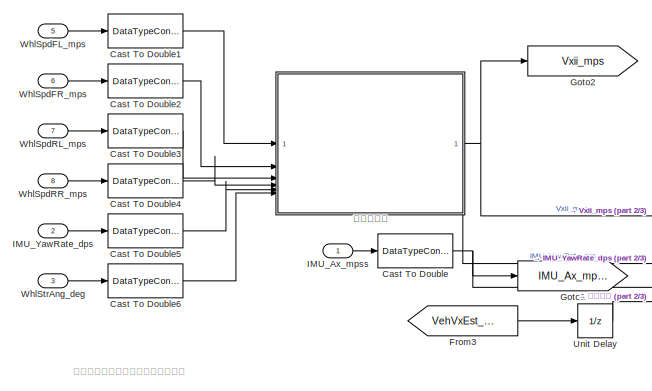
[diagram: root canvas - part 1/3, top left region]
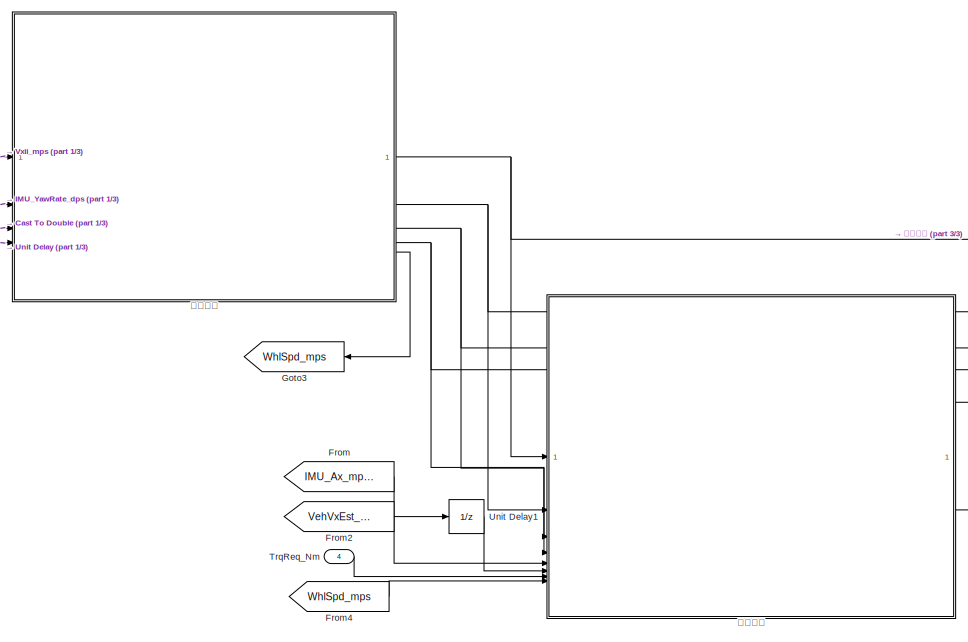
[diagram: root canvas - part 2/3, center side, full height]
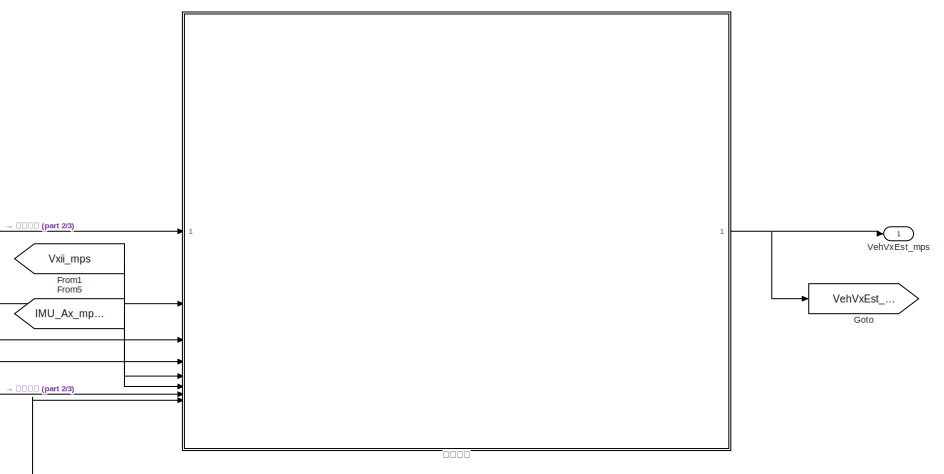
[diagram: root canvas - part 3/3, middle right region]
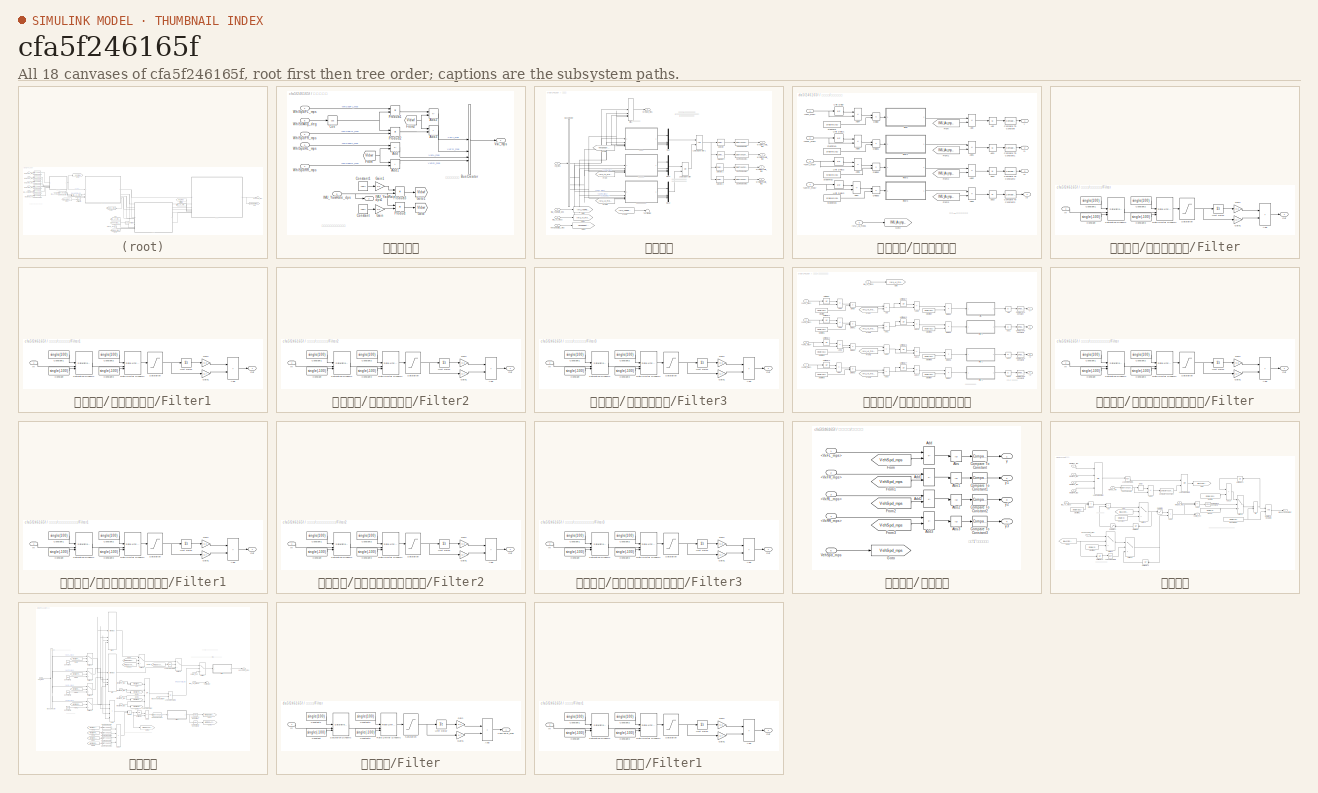
[diagram: thumbnail index - all 18 canvases of the model, root first then tree order]
MODEL slx_cfa5f246165f
KIND model
CONFIG AbsTol = auto
CONFIG EnableMultiTasking = off
CONFIG FixedStep = 0.01
CONFIG MaxStep = auto
CONFIG MinStep = auto
CONFIG RelTol = 1e-3
CONFIG SampleTimeConstraint = Unconstrained
CONFIG SolverName = FixedStepDiscrete
CONFIG StartTime = 0.0
CONFIG StopTime = 10.0
BLOCK [DataTypeConversion] Cast To Double
  OutDataTypeStr = single
  RndMeth = Floor
  SaturateOnIntegerOverflow = off
BLOCK [DataTypeConversion] Cast To Double1
  OutDataTypeStr = single
  RndMeth = Floor
  SaturateOnIntegerOverflow = off
BLOCK [DataTypeConversion] Cast To Double2
  OutDataTypeStr = single
  RndMeth = Floor
  SaturateOnIntegerOverflow = off
BLOCK [DataTypeConversion] Cast To Double3
  OutDataTypeStr = single
  RndMeth = Floor
  SaturateOnIntegerOverflow = off
BLOCK [DataTypeConversion] Cast To Double4
  OutDataTypeStr = single
  RndMeth = Floor
  SaturateOnIntegerOverflow = off
BLOCK [DataTypeConversion] Cast To Double5
  OutDataTypeStr = single
  RndMeth = Floor
  SaturateOnIntegerOverflow = off
BLOCK [DataTypeConversion] Cast To Double6
  OutDataTypeStr = single
  RndMeth = Floor
  SaturateOnIntegerOverflow = off
BLOCK [From] From
  GotoTag = IMU_Ax_mpss
BLOCK [From] From1
  GotoTag = Vxii_mps
BLOCK [From] From2
  GotoTag = VehVxEst_mps
BLOCK [From] From3
  GotoTag = VehVxEst_mps
BLOCK [From] From4
  GotoTag = WhlSpd_mps
BLOCK [From] From5
  GotoTag = IMU_Ax_mpss
BLOCK [Goto] Goto
  GotoTag = VehVxEst_mps
BLOCK [Goto] Goto1
  GotoTag = IMU_Ax_mpss
BLOCK [Goto] Goto2
  GotoTag = Vxii_mps
BLOCK [Goto] Goto3
  GotoTag = WhlSpd_mps
BLOCK [Inport] IMU_Ax_mpss
BLOCK [Inport] IMU_YawRate_dps
  Port = 2
BLOCK [Inport] TrqReq_Nm
  Port = 4
BLOCK [UnitDelay] Unit Delay
  HasFrameUpgradeWarning = on
  SampleTime = -1
BLOCK [UnitDelay] Unit Delay1
  HasFrameUpgradeWarning = on
  SampleTime = -1
BLOCK [Outport] VehVxEst_mps
BLOCK [Inport] WhlSpdFL_mps
  Port = 5
BLOCK [Inport] WhlSpdFR_mps
  Port = 6
BLOCK [Inport] WhlSpdRL_mps
  Port = 7
BLOCK [Inport] WhlSpdRR_mps
  Port = 8
BLOCK [Inport] WhlStrAng_deg
  Port = 3
BLOCK [SubSystem] 坐标系转换
BLOCK [Sum] 坐标系转换/Add
  IconShape = rectangular
  Inputs = +-
BLOCK [Sum] 坐标系转换/Add1
  IconShape = rectangular
BLOCK [Sum] 坐标系转换/Add2
  IconShape = rectangular
  Inputs = +-
BLOCK [Sum] 坐标系转换/Add3
  IconShape = rectangular
BLOCK [BusCreator] 坐标系转换/Bus Creator
  DisplayOption = bar
  InheritFromInputs = on
  Inputs = 4
BLOCK [Constant] 坐标系转换/Constant
  Value = Ldwr
BLOCK [Constant] 坐标系转换/Constant1
  Value = Ldwf
BLOCK [Trigonometry] 坐标系转换/Cos
  Operator = cos
BLOCK [From] 坐标系转换/From
  GotoTag = Vldwr
BLOCK [From] 坐标系转换/From2
  GotoTag = Vldwf
BLOCK [Gain] 坐标系转换/Gain
  Gain = 1/2
BLOCK [Gain] 坐标系转换/Gain1
  Gain = 1/2
BLOCK [Goto] 坐标系转换/Goto
  GotoTag = Vldwr
BLOCK [Goto] 坐标系转换/Goto1
  GotoTag = Vldwf
BLOCK [Inport] 坐标系转换/IMU_YawRate_dps
  Port = 5
BLOCK [Outport] 坐标系转换/IMU_YawRate_dps1
  Port = 2
BLOCK [Product] 坐标系转换/Product
BLOCK [Product] 坐标系转换/Product1
BLOCK [Product] 坐标系转换/Product2
BLOCK [Product] 坐标系转换/Product3
BLOCK [Outport] 坐标系转换/Vxii_mps
BLOCK [Inport] 坐标系转换/WhlSpdFL_mps
BLOCK [Inport] 坐标系转换/WhlSpdFR_mps
  Port = 2
BLOCK [Inport] 坐标系转换/WhlSpdRL_mps
  Port = 3
BLOCK [Inport] 坐标系转换/WhlSpdRR_mps
  Port = 4
BLOCK [Inport] 坐标系转换/WhlStrAng_deg
  Port = 6
BLOCK [SubSystem] 打滑判断
BLOCK [BusSelector] 打滑判断/Bus Selector
  OutputSignals = VxFL_mps,VxFR_mps,VxRL_mps,VxRR_mps
BLOCK [DataTypeConversion] 打滑判断/Cast To Double
  OutDataTypeStr = boolean
  RndMeth = Floor
  SaturateOnIntegerOverflow = off
BLOCK [DataTypeConversion] 打滑判断/Cast To Double1
  OutDataTypeStr = boolean
  RndMeth = Floor
  SaturateOnIntegerOverflow = off
BLOCK [DataTypeConversion] 打滑判断/Cast To Double2
  OutDataTypeStr = boolean
  RndMeth = Floor
  SaturateOnIntegerOverflow = off
BLOCK [DataTypeConversion] 打滑判断/Cast To Double3
  OutDataTypeStr = boolean
  RndMeth = Floor
  SaturateOnIntegerOverflow = off
BLOCK [From] 打滑判断/From
  GotoTag = IMU_Ax_mpss
BLOCK [From] 打滑判断/From1
  GotoTag = VehSpdEstiZ1_mps
BLOCK [From] 打滑判断/From2
  GotoTag = IMU_Ax_mpss
BLOCK [From] 打滑判断/From3
  GotoTag = IMU_YawRate_dps
BLOCK [Goto] 打滑判断/Goto
  GotoTag = IMU_YawRate_dps
BLOCK [Goto] 打滑判断/Goto1
  GotoTag = IMU_Ax_mpss
BLOCK [Goto] 打滑判断/Goto2
  GotoTag = VehSpdEstiZ1_mps
BLOCK [Inport] 打滑判断/IMU_Ax_mpss
  Port = 3
BLOCK [Inport] 打滑判断/IMU_YawRate_dps
  Port = 2
BLOCK [Logic] 打滑判断/Logical Operator
  AllPortsSameDT = off
  Operator = OR
  OutDataTypeStr = boolean
BLOCK [Logic] 打滑判断/Logical Operator1
  AllPortsSameDT = off
  OutDataTypeStr = boolean
BLOCK [MinMax] 打滑判断/Min1
  Function = max
  Inputs = 4
BLOCK [Mux] 打滑判断/Mux
  DisplayOption = bar
BLOCK [Mux] 打滑判断/Mux1
  DisplayOption = bar
BLOCK [Mux] 打滑判断/Mux2
  DisplayOption = bar
BLOCK [Selector] 打滑判断/Selector
  IndexOptions = Index vector (dialog)
  Indices = [1]
  InputPortWidth = 4
  OutputSizes = 1
BLOCK [Selector] 打滑判断/Selector1
  IndexOptions = Index vector (dialog)
  Indices = [2]
  InputPortWidth = 4
  OutputSizes = 1
BLOCK [Selector] 打滑判断/Selector2
  IndexOptions = Index vector (dialog)
  Indices = [3]
  InputPortWidth = 4
  OutputSizes = 1
BLOCK [Selector] 打滑判断/Selector3
  IndexOptions = Index vector (dialog)
  Indices = [4]
  InputPortWidth = 4
  OutputSizes = 1
BLOCK [Terminator] 打滑判断/Terminator
BLOCK [Inport] 打滑判断/VehSpdEstiZ1_mps
  Port = 4
BLOCK [Inport] 打滑判断/Vxii_mps
BLOCK [Outport] 打滑判断/WhlSlipFLValid_flag
BLOCK [Outport] 打滑判断/WhlSlipFRValid_flag
  Port = 2
BLOCK [Outport] 打滑判断/WhlSlipRLValid_flag
  Port = 3
BLOCK [Outport] 打滑判断/WhlSlipRRValid_flag
  Port = 4
BLOCK [Outport] 打滑判断/WhlSpd_mps
  Port = 5
BLOCK [SubSystem] 打滑判断/加速度差判断
BLOCK [Inport] 打滑判断/加速度差判断/<VxFL_mps>
BLOCK [Inport] 打滑判断/加速度差判断/<VxFR_mps>
  Port = 2
BLOCK [Inport] 打滑判断/加速度差判断/<VxRL_mps>
  Port = 3
BLOCK [Inport] 打滑判断/加速度差判断/<VxRR_mps>
  Port = 4
BLOCK [Abs] 打滑判断/加速度差判断/Abs
  SaturateOnIntegerOverflow = off
BLOCK [Abs] 打滑判断/加速度差判断/Abs1
  SaturateOnIntegerOverflow = off
BLOCK [Abs] 打滑判断/加速度差判断/Abs2
  SaturateOnIntegerOverflow = off
BLOCK [Abs] 打滑判断/加速度差判断/Abs3
  SaturateOnIntegerOverflow = off
BLOCK [Sum] 打滑判断/加速度差判断/Add
  IconShape = rectangular
  Inputs = +-
BLOCK [Sum] 打滑判断/加速度差判断/Add1
  IconShape = rectangular
  Inputs = +-
BLOCK [Sum] 打滑判断/加速度差判断/Add2
  IconShape = rectangular
  Inputs = +-
BLOCK [Sum] 打滑判断/加速度差判断/Add3
  IconShape = rectangular
  Inputs = +-
BLOCK [Sum] 打滑判断/加速度差判断/Add4
  IconShape = rectangular
  Inputs = -+
BLOCK [Sum] 打滑判断/加速度差判断/Add5
  IconShape = rectangular
  Inputs = -+
BLOCK [Sum] 打滑判断/加速度差判断/Add6
  IconShape = rectangular
  Inputs = -+
BLOCK [Sum] 打滑判断/加速度差判断/Add7
  IconShape = rectangular
  Inputs = -+
BLOCK [Reference] 打滑判断/加速度差判断/Compare To Constant  REF=simulink/Logic and Bit
Operations/Compare
To Constant
  SourceBlock = simulink/Logic and Bit\nOperations/Compare\nTo Constant
  SourceType = Compare To Constant
BLOCK [Reference] 打滑判断/加速度差判断/Compare To Constant1  REF=simulink/Logic and Bit
Operations/Compare
To Constant
  SourceBlock = simulink/Logic and Bit\nOperations/Compare\nTo Constant
  SourceType = Compare To Constant
BLOCK [Reference] 打滑判断/加速度差判断/Compare To Constant2  REF=simulink/Logic and Bit
Operations/Compare
To Constant
  SourceBlock = simulink/Logic and Bit\nOperations/Compare\nTo Constant
  SourceType = Compare To Constant
BLOCK [Reference] 打滑判断/加速度差判断/Compare To Constant3  REF=simulink/Logic and Bit
Operations/Compare
To Constant
  SourceBlock = simulink/Logic and Bit\nOperations/Compare\nTo Constant
  SourceType = Compare To Constant
BLOCK [Product] 打滑判断/加速度差判断/Divide
  Inputs = */
BLOCK [Product] 打滑判断/加速度差判断/Divide1
  Inputs = */
BLOCK [Product] 打滑判断/加速度差判断/Divide2
  Inputs = */
BLOCK [Product] 打滑判断/加速度差判断/Divide3
  Inputs = */
BLOCK [SubSystem] 打滑判断/加速度差判断/Filter
BLOCK [Sum] 打滑判断/加速度差判断/Filter/Add
  IconShape = rectangular
BLOCK [Constant] 打滑判断/加速度差判断/Filter/Constant
  Value = single(-100)
BLOCK [Constant] 打滑判断/加速度差判断/Filter/Constant1
  Value = single(100)
BLOCK [Constant] 打滑判断/加速度差判断/Filter/Constant2
  Value = single(100)
BLOCK [Constant] 打滑判断/加速度差判断/Filter/Constant3
  Value = single(-100)
BLOCK [Gain] 打滑判断/加速度差判断/Filter/Gain
  Gain = 0.3
BLOCK [Gain] 打滑判断/加速度差判断/Filter/Gain1
  Gain = 0.7
BLOCK [Inport] 打滑判断/加速度差判断/Filter/In
BLOCK [Outport] 打滑判断/加速度差判断/Filter/Out
BLOCK [Reference] 打滑判断/加速度差判断/Filter/Rate Limiter Dynamic  REF=simulink/Discontinuities/Rate Limiter
Dynamic
  SourceBlock = simulink/Discontinuities/Rate Limiter\nDynamic
  SourceType = Rate Limiter Dynamic
BLOCK [Saturate] 打滑判断/加速度差判断/Filter/Saturation
BLOCK [Reference] 打滑判断/加速度差判断/Filter/Saturation Dynamic  REF=simulink/Discontinuities/Saturation
Dynamic
  SourceBlock = simulink/Discontinuities/Saturation\nDynamic
  SourceType = Saturation Dynamic
BLOCK [UnitDelay] 打滑判断/加速度差判断/Filter/Unit Delay
  HasFrameUpgradeWarning = on
  SampleTime = -1
BLOCK [SubSystem] 打滑判断/加速度差判断/Filter1
BLOCK [Sum] 打滑判断/加速度差判断/Filter1/Add
  IconShape = rectangular
BLOCK [Constant] 打滑判断/加速度差判断/Filter1/Constant
  Value = single(-100)
BLOCK [Constant] 打滑判断/加速度差判断/Filter1/Constant1
  Value = single(100)
BLOCK [Constant] 打滑判断/加速度差判断/Filter1/Constant2
  Value = single(100)
BLOCK [Constant] 打滑判断/加速度差判断/Filter1/Constant3
  Value = single(-100)
BLOCK [Gain] 打滑判断/加速度差判断/Filter1/Gain
  Gain = 0.3
BLOCK [Gain] 打滑判断/加速度差判断/Filter1/Gain1
  Gain = 0.7
BLOCK [Inport] 打滑判断/加速度差判断/Filter1/In
BLOCK [Outport] 打滑判断/加速度差判断/Filter1/Out
BLOCK [Reference] 打滑判断/加速度差判断/Filter1/Rate Limiter Dynamic  REF=simulink/Discontinuities/Rate Limiter
Dynamic
  SourceBlock = simulink/Discontinuities/Rate Limiter\nDynamic
  SourceType = Rate Limiter Dynamic
BLOCK [Saturate] 打滑判断/加速度差判断/Filter1/Saturation
BLOCK [Reference] 打滑判断/加速度差判断/Filter1/Saturation Dynamic  REF=simulink/Discontinuities/Saturation
Dynamic
  SourceBlock = simulink/Discontinuities/Saturation\nDynamic
  SourceType = Saturation Dynamic
BLOCK [UnitDelay] 打滑判断/加速度差判断/Filter1/Unit Delay
  HasFrameUpgradeWarning = on
  SampleTime = -1
BLOCK [SubSystem] 打滑判断/加速度差判断/Filter2
BLOCK [Sum] 打滑判断/加速度差判断/Filter2/Add
  IconShape = rectangular
BLOCK [Constant] 打滑判断/加速度差判断/Filter2/Constant
  Value = single(-100)
BLOCK [Constant] 打滑判断/加速度差判断/Filter2/Constant1
  Value = single(100)
BLOCK [Constant] 打滑判断/加速度差判断/Filter2/Constant2
  Value = single(100)
BLOCK [Constant] 打滑判断/加速度差判断/Filter2/Constant3
  Value = single(-100)
BLOCK [Gain] 打滑判断/加速度差判断/Filter2/Gain
  Gain = 0.3
BLOCK [Gain] 打滑判断/加速度差判断/Filter2/Gain1
  Gain = 0.7
BLOCK [Inport] 打滑判断/加速度差判断/Filter2/In
BLOCK [Outport] 打滑判断/加速度差判断/Filter2/Out
BLOCK [Reference] 打滑判断/加速度差判断/Filter2/Rate Limiter Dynamic  REF=simulink/Discontinuities/Rate Limiter
Dynamic
  SourceBlock = simulink/Discontinuities/Rate Limiter\nDynamic
  SourceType = Rate Limiter Dynamic
BLOCK [Saturate] 打滑判断/加速度差判断/Filter2/Saturation
BLOCK [Reference] 打滑判断/加速度差判断/Filter2/Saturation Dynamic  REF=simulink/Discontinuities/Saturation
Dynamic
  SourceBlock = simulink/Discontinuities/Saturation\nDynamic
  SourceType = Saturation Dynamic
BLOCK [UnitDelay] 打滑判断/加速度差判断/Filter2/Unit Delay
  HasFrameUpgradeWarning = on
  SampleTime = -1
BLOCK [SubSystem] 打滑判断/加速度差判断/Filter3
BLOCK [Sum] 打滑判断/加速度差判断/Filter3/Add
  IconShape = rectangular
BLOCK [Constant] 打滑判断/加速度差判断/Filter3/Constant
  Value = single(-100)
BLOCK [Constant] 打滑判断/加速度差判断/Filter3/Constant1
  Value = single(100)
BLOCK [Constant] 打滑判断/加速度差判断/Filter3/Constant2
  Value = single(100)
BLOCK [Constant] 打滑判断/加速度差判断/Filter3/Constant3
  Value = single(-100)
BLOCK [Gain] 打滑判断/加速度差判断/Filter3/Gain
  Gain = 0.3
BLOCK [Gain] 打滑判断/加速度差判断/Filter3/Gain1
  Gain = 0.7
BLOCK [Inport] 打滑判断/加速度差判断/Filter3/In
BLOCK [Outport] 打滑判断/加速度差判断/Filter3/Out
BLOCK [Reference] 打滑判断/加速度差判断/Filter3/Rate Limiter Dynamic  REF=simulink/Discontinuities/Rate Limiter
Dynamic
  SourceBlock = simulink/Discontinuities/Rate Limiter\nDynamic
  SourceType = Rate Limiter Dynamic
BLOCK [Saturate] 打滑判断/加速度差判断/Filter3/Saturation
BLOCK [Reference] 打滑判断/加速度差判断/Filter3/Saturation Dynamic  REF=simulink/Discontinuities/Saturation
Dynamic
  SourceBlock = simulink/Discontinuities/Saturation\nDynamic
  SourceType = Saturation Dynamic
BLOCK [UnitDelay] 打滑判断/加速度差判断/Filter3/Unit Delay
  HasFrameUpgradeWarning = on
  SampleTime = -1
BLOCK [From] 打滑判断/加速度差判断/From
  GotoTag = IMU_Ax_mpss
BLOCK [From] 打滑判断/加速度差判断/From1
  GotoTag = IMU_Ax_mpss
BLOCK [From] 打滑判断/加速度差判断/From2
  GotoTag = IMU_Ax_mpss
BLOCK [From] 打滑判断/加速度差判断/From3
  GotoTag = IMU_Ax_mpss
BLOCK [Goto] 打滑判断/加速度差判断/Goto
  GotoTag = IMU_Ax_mpss
BLOCK [Inport] 打滑判断/加速度差判断/IMU_Ax_mpss
  Port = 5
BLOCK [UnitDelay] 打滑判断/加速度差判断/Unit Delay
  HasFrameUpgradeWarning = on
  SampleTime = -1
BLOCK [UnitDelay] 打滑判断/加速度差判断/Unit Delay1
  HasFrameUpgradeWarning = on
  SampleTime = -1
BLOCK [UnitDelay] 打滑判断/加速度差判断/Unit Delay2
  HasFrameUpgradeWarning = on
  SampleTime = -1
BLOCK [UnitDelay] 打滑判断/加速度差判断/Unit Delay3
  HasFrameUpgradeWarning = on
  SampleTime = -1
BLOCK [Constant] 打滑判断/加速度差判断/steptime
  Value = single(0.01)
BLOCK [Constant] 打滑判断/加速度差判断/steptime1
  Value = single(0.01)
BLOCK [Constant] 打滑判断/加速度差判断/steptime2
  Value = single(0.01)
BLOCK [Constant] 打滑判断/加速度差判断/steptime3
  Value = single(0.01)
BLOCK [Outport] 打滑判断/加速度差判断/y
BLOCK [Outport] 打滑判断/加速度差判断/y1
  Port = 2
BLOCK [Outport] 打滑判断/加速度差判断/y2
  Port = 3
BLOCK [Outport] 打滑判断/加速度差判断/y3
  Port = 4
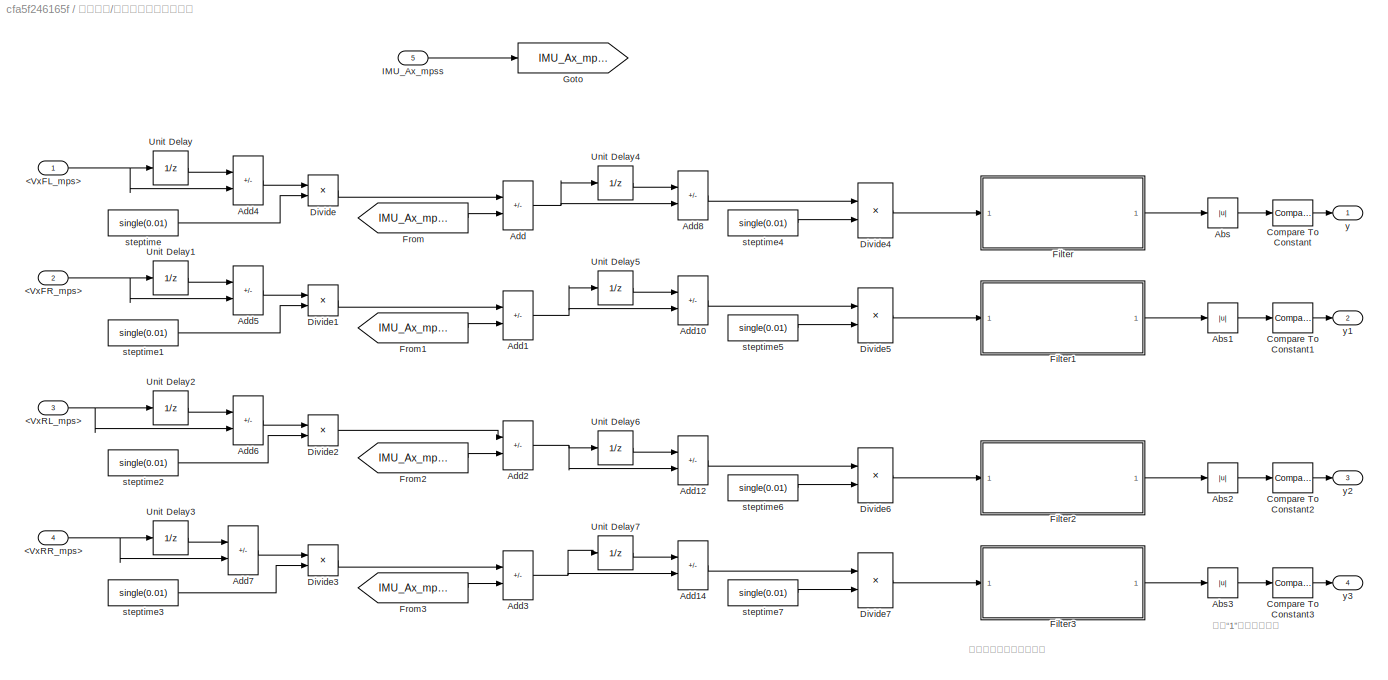
BLOCK [SubSystem] 打滑判断/加速度差的微分的判断
BLOCK [Inport] 打滑判断/加速度差的微分的判断/<VxFL_mps>
BLOCK [Inport] 打滑判断/加速度差的微分的判断/<VxFR_mps>
  Port = 2
BLOCK [Inport] 打滑判断/加速度差的微分的判断/<VxRL_mps>
  Port = 3
BLOCK [Inport] 打滑判断/加速度差的微分的判断/<VxRR_mps>
  Port = 4
BLOCK [Abs] 打滑判断/加速度差的微分的判断/Abs
  SaturateOnIntegerOverflow = off
BLOCK [Abs] 打滑判断/加速度差的微分的判断/Abs1
  SaturateOnIntegerOverflow = off
BLOCK [Abs] 打滑判断/加速度差的微分的判断/Abs2
  SaturateOnIntegerOverflow = off
BLOCK [Abs] 打滑判断/加速度差的微分的判断/Abs3
  SaturateOnIntegerOverflow = off
BLOCK [Sum] 打滑判断/加速度差的微分的判断/Add
  IconShape = rectangular
  Inputs = +-
BLOCK [Sum] 打滑判断/加速度差的微分的判断/Add1
  IconShape = rectangular
  Inputs = +-
BLOCK [Sum] 打滑判断/加速度差的微分的判断/Add10
  IconShape = rectangular
  Inputs = -+
BLOCK [Sum] 打滑判断/加速度差的微分的判断/Add12
  IconShape = rectangular
  Inputs = -+
BLOCK [Sum] 打滑判断/加速度差的微分的判断/Add14
  IconShape = rectangular
  Inputs = -+
BLOCK [Sum] 打滑判断/加速度差的微分的判断/Add2
  IconShape = rectangular
  Inputs = +-
BLOCK [Sum] 打滑判断/加速度差的微分的判断/Add3
  IconShape = rectangular
  Inputs = +-
BLOCK [Sum] 打滑判断/加速度差的微分的判断/Add4
  IconShape = rectangular
  Inputs = -+
BLOCK [Sum] 打滑判断/加速度差的微分的判断/Add5
  IconShape = rectangular
  Inputs = -+
BLOCK [Sum] 打滑判断/加速度差的微分的判断/Add6
  IconShape = rectangular
  Inputs = -+
BLOCK [Sum] 打滑判断/加速度差的微分的判断/Add7
  IconShape = rectangular
  Inputs = -+
BLOCK [Sum] 打滑判断/加速度差的微分的判断/Add8
  IconShape = rectangular
  Inputs = -+
BLOCK [Reference] 打滑判断/加速度差的微分的判断/Compare To Constant  REF=simulink/Logic and Bit
Operations/Compare
To Constant
  SourceBlock = simulink/Logic and Bit\nOperations/Compare\nTo Constant
  SourceType = Compare To Constant
BLOCK [Reference] 打滑判断/加速度差的微分的判断/Compare To Constant1  REF=simulink/Logic and Bit
Operations/Compare
To Constant
  SourceBlock = simulink/Logic and Bit\nOperations/Compare\nTo Constant
  SourceType = Compare To Constant
BLOCK [Reference] 打滑判断/加速度差的微分的判断/Compare To Constant2  REF=simulink/Logic and Bit
Operations/Compare
To Constant
  SourceBlock = simulink/Logic and Bit\nOperations/Compare\nTo Constant
  SourceType = Compare To Constant
BLOCK [Reference] 打滑判断/加速度差的微分的判断/Compare To Constant3  REF=simulink/Logic and Bit
Operations/Compare
To Constant
  SourceBlock = simulink/Logic and Bit\nOperations/Compare\nTo Constant
  SourceType = Compare To Constant
BLOCK [Product] 打滑判断/加速度差的微分的判断/Divide
  Inputs = */
BLOCK [Product] 打滑判断/加速度差的微分的判断/Divide1
  Inputs = */
BLOCK [Product] 打滑判断/加速度差的微分的判断/Divide2
  Inputs = */
BLOCK [Product] 打滑判断/加速度差的微分的判断/Divide3
  Inputs = */
BLOCK [Product] 打滑判断/加速度差的微分的判断/Divide4
  Inputs = */
BLOCK [Product] 打滑判断/加速度差的微分的判断/Divide5
  Inputs = */
BLOCK [Product] 打滑判断/加速度差的微分的判断/Divide6
  Inputs = */
BLOCK [Product] 打滑判断/加速度差的微分的判断/Divide7
  Inputs = */
BLOCK [SubSystem] 打滑判断/加速度差的微分的判断/Filter
BLOCK [Sum] 打滑判断/加速度差的微分的判断/Filter/Add
  IconShape = rectangular
BLOCK [Constant] 打滑判断/加速度差的微分的判断/Filter/Constant
  Value = single(-100)
BLOCK [Constant] 打滑判断/加速度差的微分的判断/Filter/Constant1
  Value = single(100)
BLOCK [Constant] 打滑判断/加速度差的微分的判断/Filter/Constant2
  Value = single(100)
BLOCK [Constant] 打滑判断/加速度差的微分的判断/Filter/Constant3
  Value = single(-100)
BLOCK [Gain] 打滑判断/加速度差的微分的判断/Filter/Gain
  Gain = 0.3
BLOCK [Gain] 打滑判断/加速度差的微分的判断/Filter/Gain1
  Gain = 0.7
BLOCK [Inport] 打滑判断/加速度差的微分的判断/Filter/In
BLOCK [Outport] 打滑判断/加速度差的微分的判断/Filter/Out
BLOCK [Reference] 打滑判断/加速度差的微分的判断/Filter/Rate Limiter Dynamic  REF=simulink/Discontinuities/Rate Limiter
Dynamic
  SourceBlock = simulink/Discontinuities/Rate Limiter\nDynamic
  SourceType = Rate Limiter Dynamic
BLOCK [Saturate] 打滑判断/加速度差的微分的判断/Filter/Saturation
BLOCK [Reference] 打滑判断/加速度差的微分的判断/Filter/Saturation Dynamic  REF=simulink/Discontinuities/Saturation
Dynamic
  SourceBlock = simulink/Discontinuities/Saturation\nDynamic
  SourceType = Saturation Dynamic
BLOCK [UnitDelay] 打滑判断/加速度差的微分的判断/Filter/Unit Delay
  HasFrameUpgradeWarning = on
  SampleTime = -1
BLOCK [SubSystem] 打滑判断/加速度差的微分的判断/Filter1
BLOCK [Sum] 打滑判断/加速度差的微分的判断/Filter1/Add
  IconShape = rectangular
BLOCK [Constant] 打滑判断/加速度差的微分的判断/Filter1/Constant
  Value = single(-100)
BLOCK [Constant] 打滑判断/加速度差的微分的判断/Filter1/Constant1
  Value = single(100)
BLOCK [Constant] 打滑判断/加速度差的微分的判断/Filter1/Constant2
  Value = single(100)
BLOCK [Constant] 打滑判断/加速度差的微分的判断/Filter1/Constant3
  Value = single(-100)
BLOCK [Gain] 打滑判断/加速度差的微分的判断/Filter1/Gain
  Gain = 0.3
BLOCK [Gain] 打滑判断/加速度差的微分的判断/Filter1/Gain1
  Gain = 0.7
BLOCK [Inport] 打滑判断/加速度差的微分的判断/Filter1/In
BLOCK [Outport] 打滑判断/加速度差的微分的判断/Filter1/Out
BLOCK [Reference] 打滑判断/加速度差的微分的判断/Filter1/Rate Limiter Dynamic  REF=simulink/Discontinuities/Rate Limiter
Dynamic
  SourceBlock = simulink/Discontinuities/Rate Limiter\nDynamic
  SourceType = Rate Limiter Dynamic
BLOCK [Saturate] 打滑判断/加速度差的微分的判断/Filter1/Saturation
BLOCK [Reference] 打滑判断/加速度差的微分的判断/Filter1/Saturation Dynamic  REF=simulink/Discontinuities/Saturation
Dynamic
  SourceBlock = simulink/Discontinuities/Saturation\nDynamic
  SourceType = Saturation Dynamic
BLOCK [UnitDelay] 打滑判断/加速度差的微分的判断/Filter1/Unit Delay
  HasFrameUpgradeWarning = on
  SampleTime = -1
BLOCK [SubSystem] 打滑判断/加速度差的微分的判断/Filter2
BLOCK [Sum] 打滑判断/加速度差的微分的判断/Filter2/Add
  IconShape = rectangular
BLOCK [Constant] 打滑判断/加速度差的微分的判断/Filter2/Constant
  Value = single(-100)
BLOCK [Constant] 打滑判断/加速度差的微分的判断/Filter2/Constant1
  Value = single(100)
BLOCK [Constant] 打滑判断/加速度差的微分的判断/Filter2/Constant2
  Value = single(100)
BLOCK [Constant] 打滑判断/加速度差的微分的判断/Filter2/Constant3
  Value = single(-100)
BLOCK [Gain] 打滑判断/加速度差的微分的判断/Filter2/Gain
  Gain = 0.3
BLOCK [Gain] 打滑判断/加速度差的微分的判断/Filter2/Gain1
  Gain = 0.7
BLOCK [Inport] 打滑判断/加速度差的微分的判断/Filter2/In
BLOCK [Outport] 打滑判断/加速度差的微分的判断/Filter2/Out
BLOCK [Reference] 打滑判断/加速度差的微分的判断/Filter2/Rate Limiter Dynamic  REF=simulink/Discontinuities/Rate Limiter
Dynamic
  SourceBlock = simulink/Discontinuities/Rate Limiter\nDynamic
  SourceType = Rate Limiter Dynamic
BLOCK [Saturate] 打滑判断/加速度差的微分的判断/Filter2/Saturation
BLOCK [Reference] 打滑判断/加速度差的微分的判断/Filter2/Saturation Dynamic  REF=simulink/Discontinuities/Saturation
Dynamic
  SourceBlock = simulink/Discontinuities/Saturation\nDynamic
  SourceType = Saturation Dynamic
BLOCK [UnitDelay] 打滑判断/加速度差的微分的判断/Filter2/Unit Delay
  HasFrameUpgradeWarning = on
  SampleTime = -1
BLOCK [SubSystem] 打滑判断/加速度差的微分的判断/Filter3
BLOCK [Sum] 打滑判断/加速度差的微分的判断/Filter3/Add
  IconShape = rectangular
BLOCK [Constant] 打滑判断/加速度差的微分的判断/Filter3/Constant
  Value = single(-100)
BLOCK [Constant] 打滑判断/加速度差的微分的判断/Filter3/Constant1
  Value = single(100)
BLOCK [Constant] 打滑判断/加速度差的微分的判断/Filter3/Constant2
  Value = single(100)
BLOCK [Constant] 打滑判断/加速度差的微分的判断/Filter3/Constant3
  Value = single(-100)
BLOCK [Gain] 打滑判断/加速度差的微分的判断/Filter3/Gain
  Gain = 0.3
BLOCK [Gain] 打滑判断/加速度差的微分的判断/Filter3/Gain1
  Gain = 0.7
BLOCK [Inport] 打滑判断/加速度差的微分的判断/Filter3/In
BLOCK [Outport] 打滑判断/加速度差的微分的判断/Filter3/Out
BLOCK [Reference] 打滑判断/加速度差的微分的判断/Filter3/Rate Limiter Dynamic  REF=simulink/Discontinuities/Rate Limiter
Dynamic
  SourceBlock = simulink/Discontinuities/Rate Limiter\nDynamic
  SourceType = Rate Limiter Dynamic
BLOCK [Saturate] 打滑判断/加速度差的微分的判断/Filter3/Saturation
BLOCK [Reference] 打滑判断/加速度差的微分的判断/Filter3/Saturation Dynamic  REF=simulink/Discontinuities/Saturation
Dynamic
  SourceBlock = simulink/Discontinuities/Saturation\nDynamic
  SourceType = Saturation Dynamic
BLOCK [UnitDelay] 打滑判断/加速度差的微分的判断/Filter3/Unit Delay
  HasFrameUpgradeWarning = on
  SampleTime = -1
BLOCK [From] 打滑判断/加速度差的微分的判断/From
  GotoTag = IMU_Ax_mpss
BLOCK [From] 打滑判断/加速度差的微分的判断/From1
  GotoTag = IMU_Ax_mpss
BLOCK [From] 打滑判断/加速度差的微分的判断/From2
  GotoTag = IMU_Ax_mpss
BLOCK [From] 打滑判断/加速度差的微分的判断/From3
  GotoTag = IMU_Ax_mpss
BLOCK [Goto] 打滑判断/加速度差的微分的判断/Goto
  GotoTag = IMU_Ax_mpss
BLOCK [Inport] 打滑判断/加速度差的微分的判断/IMU_Ax_mpss
  Port = 5
BLOCK [UnitDelay] 打滑判断/加速度差的微分的判断/Unit Delay
  HasFrameUpgradeWarning = on
  SampleTime = -1
BLOCK [UnitDelay] 打滑判断/加速度差的微分的判断/Unit Delay1
  HasFrameUpgradeWarning = on
  SampleTime = -1
BLOCK [UnitDelay] 打滑判断/加速度差的微分的判断/Unit Delay2
  HasFrameUpgradeWarning = on
  SampleTime = -1
BLOCK [UnitDelay] 打滑判断/加速度差的微分的判断/Unit Delay3
  HasFrameUpgradeWarning = on
  SampleTime = -1
BLOCK [UnitDelay] 打滑判断/加速度差的微分的判断/Unit Delay4
  HasFrameUpgradeWarning = on
  SampleTime = -1
BLOCK [UnitDelay] 打滑判断/加速度差的微分的判断/Unit Delay5
  HasFrameUpgradeWarning = on
  SampleTime = -1
BLOCK [UnitDelay] 打滑判断/加速度差的微分的判断/Unit Delay6
  HasFrameUpgradeWarning = on
  SampleTime = -1
BLOCK [UnitDelay] 打滑判断/加速度差的微分的判断/Unit Delay7
  HasFrameUpgradeWarning = on
  SampleTime = -1
BLOCK [Constant] 打滑判断/加速度差的微分的判断/steptime
  Value = single(0.01)
BLOCK [Constant] 打滑判断/加速度差的微分的判断/steptime1
  Value = single(0.01)
BLOCK [Constant] 打滑判断/加速度差的微分的判断/steptime2
  Value = single(0.01)
BLOCK [Constant] 打滑判断/加速度差的微分的判断/steptime3
  Value = single(0.01)
BLOCK [Constant] 打滑判断/加速度差的微分的判断/steptime4
  Value = single(0.01)
BLOCK [Constant] 打滑判断/加速度差的微分的判断/steptime5
  Value = single(0.01)
BLOCK [Constant] 打滑判断/加速度差的微分的判断/steptime6
  Value = single(0.01)
BLOCK [Constant] 打滑判断/加速度差的微分的判断/steptime7
  Value = single(0.01)
BLOCK [Outport] 打滑判断/加速度差的微分的判断/y
BLOCK [Outport] 打滑判断/加速度差的微分的判断/y1
  Port = 2
BLOCK [Outport] 打滑判断/加速度差的微分的判断/y2
  Port = 3
BLOCK [Outport] 打滑判断/加速度差的微分的判断/y3
  Port = 4
BLOCK [SubSystem] 打滑判断/速差判断
BLOCK [Inport] 打滑判断/速差判断/<VxFL_mps>
BLOCK [Inport] 打滑判断/速差判断/<VxFR_mps>
  Port = 2
BLOCK [Inport] 打滑判断/速差判断/<VxRL_mps>
  Port = 3
BLOCK [Inport] 打滑判断/速差判断/<VxRR_mps>
  Port = 4
BLOCK [Abs] 打滑判断/速差判断/Abs
  SaturateOnIntegerOverflow = off
BLOCK [Abs] 打滑判断/速差判断/Abs1
  SaturateOnIntegerOverflow = off
BLOCK [Abs] 打滑判断/速差判断/Abs2
  SaturateOnIntegerOverflow = off
BLOCK [Abs] 打滑判断/速差判断/Abs3
  SaturateOnIntegerOverflow = off
BLOCK [Sum] 打滑判断/速差判断/Add
  IconShape = rectangular
  Inputs = +-
BLOCK [Sum] 打滑判断/速差判断/Add1
  IconShape = rectangular
  Inputs = +-
BLOCK [Sum] 打滑判断/速差判断/Add2
  IconShape = rectangular
  Inputs = +-
BLOCK [Sum] 打滑判断/速差判断/Add3
  IconShape = rectangular
  Inputs = +-
BLOCK [Reference] 打滑判断/速差判断/Compare To Constant  REF=simulink/Logic and Bit
Operations/Compare
To Constant
  SourceBlock = simulink/Logic and Bit\nOperations/Compare\nTo Constant
  SourceType = Compare To Constant
BLOCK [Reference] 打滑判断/速差判断/Compare To Constant1  REF=simulink/Logic and Bit
Operations/Compare
To Constant
  SourceBlock = simulink/Logic and Bit\nOperations/Compare\nTo Constant
  SourceType = Compare To Constant
BLOCK [Reference] 打滑判断/速差判断/Compare To Constant2  REF=simulink/Logic and Bit
Operations/Compare
To Constant
  SourceBlock = simulink/Logic and Bit\nOperations/Compare\nTo Constant
  SourceType = Compare To Constant
BLOCK [Reference] 打滑判断/速差判断/Compare To Constant3  REF=simulink/Logic and Bit
Operations/Compare
To Constant
  SourceBlock = simulink/Logic and Bit\nOperations/Compare\nTo Constant
  SourceType = Compare To Constant
BLOCK [From] 打滑判断/速差判断/From
  GotoTag = VehSpd_mps
BLOCK [From] 打滑判断/速差判断/From1
  GotoTag = VehSpd_mps
BLOCK [From] 打滑判断/速差判断/From2
  GotoTag = VehSpd_mps
BLOCK [From] 打滑判断/速差判断/From3
  GotoTag = VehSpd_mps
BLOCK [Goto] 打滑判断/速差判断/Goto
  GotoTag = VehSpd_mps
BLOCK [Inport] 打滑判断/速差判断/VehSpd_mps
  Port = 5
BLOCK [Outport] 打滑判断/速差判断/y
BLOCK [Outport] 打滑判断/速差判断/y1
  Port = 2
BLOCK [Outport] 打滑判断/速差判断/y2
  Port = 3
BLOCK [Outport] 打滑判断/速差判断/y3
  Port = 4
BLOCK [SubSystem] 积分判断
BLOCK [Sum] 积分判断/Add
  IconShape = rectangular
BLOCK [Sum] 积分判断/Add1
  IconShape = rectangular
  Inputs = -+
BLOCK [Sum] 积分判断/Add10
  IconShape = rectangular
BLOCK [Sum] 积分判断/Add2
  IconShape = rectangular
  Inputs = +-
BLOCK [Sum] 积分判断/Add3
  IconShape = rectangular
BLOCK [DataTypeConversion] 积分判断/Cast To Double
  OutDataTypeStr = single
  RndMeth = Floor
  SaturateOnIntegerOverflow = off
BLOCK [Reference] 积分判断/Compare To Constant  REF=simulink/Logic and Bit
Operations/Compare
To Constant
  SourceBlock = simulink/Logic and Bit\nOperations/Compare\nTo Constant
  SourceType = Compare To Constant
BLOCK [Reference] 积分判断/Compare To Constant1  REF=simulink/Logic and Bit
Operations/Compare
To Constant
  SourceBlock = simulink/Logic and Bit\nOperations/Compare\nTo Constant
  SourceType = Compare To Constant
BLOCK [Constant] 积分判断/Constant
  Value = single(0)
BLOCK [Delay] 积分判断/Delay
  DelayLength = 5
  InputPortMap = u0
BLOCK [Inport] 积分判断/FFVehVxEst_mps
  Port = 6
BLOCK [From] 积分判断/From
  GotoTag = IMUAccIns_ACT
BLOCK [From] 积分判断/From1
  GotoTag = IMUAccIns_ACT
BLOCK [Goto] 积分判断/Goto
  GotoTag = IMUAccIns_ACT
BLOCK [Outport] 积分判断/IMUVehSpdEstiExit
  Port = 2
BLOCK [Inport] 积分判断/IMU_Ax_mpss
  Port = 5
BLOCK [Logic] 积分判断/Logical Operator
  AllPortsSameDT = off
  Inputs = 4
  Operator = OR
  OutDataTypeStr = boolean
BLOCK [Logic] 积分判断/Logical Operator1
  AllPortsSameDT = off
  Operator = NOT
  OutDataTypeStr = boolean
BLOCK [Logic] 积分判断/Logical Operator2
  AllPortsSameDT = off
  Operator = OR
  OutDataTypeStr = boolean
BLOCK [Logic] 积分判断/Logical Operator3
  AllPortsSameDT = off
  Operator = NOT
  OutDataTypeStr = boolean
BLOCK [MinMax] 积分判断/Min
  Inputs = 2
BLOCK [Product] 积分判断/Product
BLOCK [RelationalOperator] 积分判断/Relational Operator9
  InputSameDT = off
  OutDataTypeStr = boolean
  RndMeth = Simplest
BLOCK [Constant] 积分判断/Reset
  Value = single(0)
BLOCK [Constant] 积分判断/ResetDelay
  Value = single(0.1)
BLOCK [Saturate] 积分判断/Saturation
  LowerLimit = -10
  UpperLimit = 50
BLOCK [Saturate] 积分判断/Saturation1
  LowerLimit = -10
  UpperLimit = 50
BLOCK [Constant] 积分判断/Steptime
  Value = single(0.01)
BLOCK [Switch] 积分判断/Switch1
  Criteria = u2 ~= 0
  InputSameDT = off
  SaturateOnIntegerOverflow = off
BLOCK [Switch] 积分判断/Switch3
  Criteria = u2 ~= 0
  InputSameDT = off
  SaturateOnIntegerOverflow = off
BLOCK [Switch] 积分判断/Switch4
  Criteria = u2 ~= 0
  InputSameDT = off
  SaturateOnIntegerOverflow = off
BLOCK [Switch] 积分判断/Switch6
  Criteria = u2 ~= 0
  InputSameDT = off
  SaturateOnIntegerOverflow = off
BLOCK [Inport] 积分判断/TrqReq_Nm
  Port = 7
BLOCK [UnitDelay] 积分判断/Unit Delay
  HasFrameUpgradeWarning = on
  SampleTime = -1
BLOCK [UnitDelay] 积分判断/Unit Delay2
  HasFrameUpgradeWarning = on
  SampleTime = -1
BLOCK [UnitDelay] 积分判断/Unit Delay3
  HasFrameUpgradeWarning = on
  SampleTime = 0.01
BLOCK [UnitDelay] 积分判断/Unit Delay4
  HasFrameUpgradeWarning = on
  SampleTime = -1
BLOCK [Outport] 积分判断/VxIMU_est
BLOCK [Inport] 积分判断/WhlSlipFL_flag
BLOCK [Inport] 积分判断/WhlSlipFR_flag
  Port = 2
BLOCK [Inport] 积分判断/WhlSlipRL_flag
  Port = 3
BLOCK [Inport] 积分判断/WhlSlipRR_flag
  Port = 4
BLOCK [Inport] 积分判断/WhlSpd_mps
  Port = 8
BLOCK [Constant] 积分判断/steptime1
  Value = single(0.01)
BLOCK [Constant] 积分判断/steptime3
  Value = single(0)
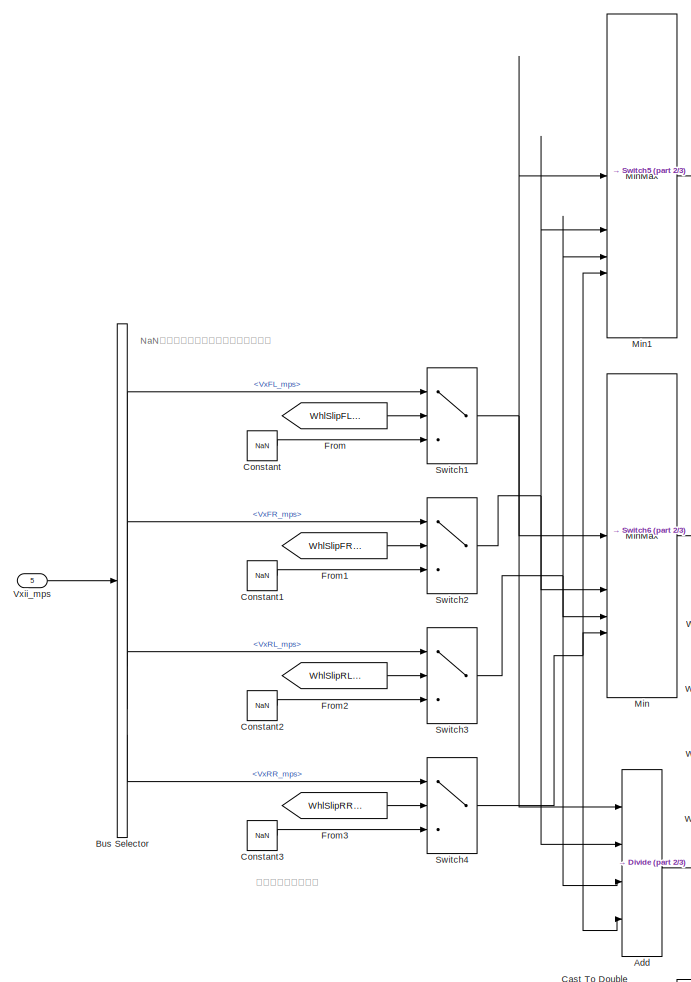
[diagram: 车速估计 - part 1/3, left side, full height]
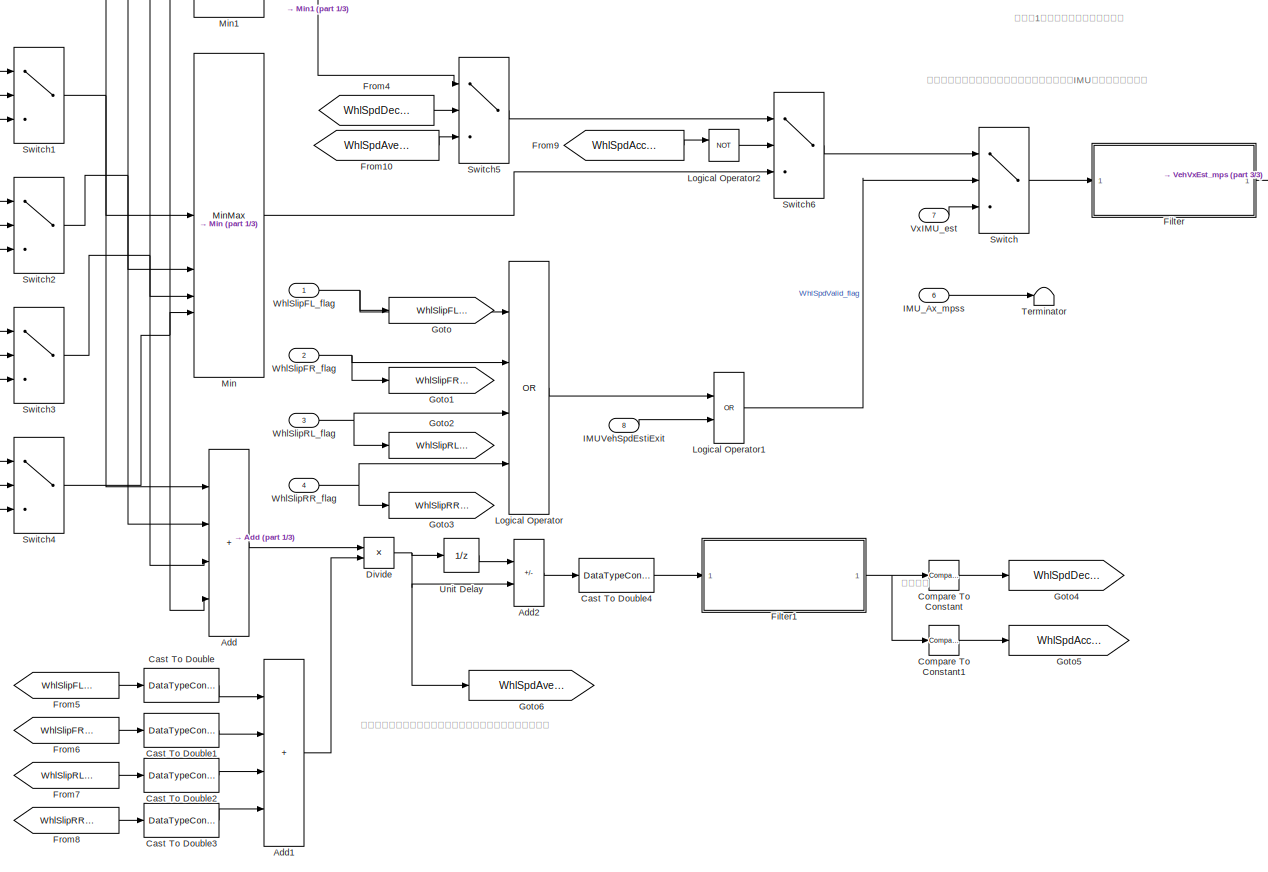
[diagram: 车速估计 - part 2/3, central region]
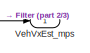
[diagram: 车速估计 - part 3/3, middle right region]
BLOCK [SubSystem] 车速估计
BLOCK [Sum] 车速估计/Add
  IconShape = rectangular
  Inputs = ++++
BLOCK [Sum] 车速估计/Add1
  IconShape = rectangular
  Inputs = ++++
BLOCK [Sum] 车速估计/Add2
  IconShape = rectangular
  Inputs = -+
BLOCK [BusSelector] 车速估计/Bus Selector
  OutputSignals = VxFL_mps,VxFR_mps,VxRL_mps,VxRR_mps
BLOCK [DataTypeConversion] 车速估计/Cast To Double
  OutDataTypeStr = single
  RndMeth = Floor
  SaturateOnIntegerOverflow = off
BLOCK [DataTypeConversion] 车速估计/Cast To Double1
  OutDataTypeStr = single
  RndMeth = Floor
  SaturateOnIntegerOverflow = off
BLOCK [DataTypeConversion] 车速估计/Cast To Double2
  OutDataTypeStr = single
  RndMeth = Floor
  SaturateOnIntegerOverflow = off
BLOCK [DataTypeConversion] 车速估计/Cast To Double3
  OutDataTypeStr = single
  RndMeth = Floor
  SaturateOnIntegerOverflow = off
BLOCK [DataTypeConversion] 车速估计/Cast To Double4
  OutDataTypeStr = single
  RndMeth = Floor
  SaturateOnIntegerOverflow = off
BLOCK [Reference] 车速估计/Compare To Constant  REF=simulink/Logic and Bit
Operations/Compare
To Constant
  SourceBlock = simulink/Logic and Bit\nOperations/Compare\nTo Constant
  SourceType = Compare To Constant
BLOCK [Reference] 车速估计/Compare To Constant1  REF=simulink/Logic and Bit
Operations/Compare
To Constant
  SourceBlock = simulink/Logic and Bit\nOperations/Compare\nTo Constant
  SourceType = Compare To Constant
BLOCK [Constant] 车速估计/Constant
  Value = NaN
BLOCK [Constant] 车速估计/Constant1
  Value = NaN
BLOCK [Constant] 车速估计/Constant2
  Value = NaN
BLOCK [Constant] 车速估计/Constant3
  Value = NaN
BLOCK [Product] 车速估计/Divide
  Inputs = */
BLOCK [SubSystem] 车速估计/Filter
BLOCK [Sum] 车速估计/Filter/Add
  IconShape = rectangular
BLOCK [Constant] 车速估计/Filter/Constant
  Value = single(-100)
BLOCK [Constant] 车速估计/Filter/Constant1
  Value = single(100)
BLOCK [Constant] 车速估计/Filter/Constant2
  Value = single(100)
BLOCK [Constant] 车速估计/Filter/Constant3
  Value = single(-100)
BLOCK [Gain] 车速估计/Filter/Gain
  Gain = 0.3
BLOCK [Gain] 车速估计/Filter/Gain1
  Gain = 0.7
BLOCK [Inport] 车速估计/Filter/In
BLOCK [Reference] 车速估计/Filter/Rate Limiter Dynamic  REF=simulink/Discontinuities/Rate Limiter
Dynamic
  SourceBlock = simulink/Discontinuities/Rate Limiter\nDynamic
  SourceType = Rate Limiter Dynamic
BLOCK [Saturate] 车速估计/Filter/Saturation
BLOCK [Reference] 车速估计/Filter/Saturation Dynamic  REF=simulink/Discontinuities/Saturation
Dynamic
  SourceBlock = simulink/Discontinuities/Saturation\nDynamic
  SourceType = Saturation Dynamic
BLOCK [UnitDelay] 车速估计/Filter/Unit Delay
  HasFrameUpgradeWarning = on
  SampleTime = -1
BLOCK [Outport] 车速估计/Filter/VehVxEst_mps
BLOCK [SubSystem] 车速估计/Filter1
BLOCK [Sum] 车速估计/Filter1/Add
  IconShape = rectangular
BLOCK [Constant] 车速估计/Filter1/Constant
  Value = single(-100)
BLOCK [Constant] 车速估计/Filter1/Constant1
  Value = single(100)
BLOCK [Constant] 车速估计/Filter1/Constant2
  Value = single(100)
BLOCK [Constant] 车速估计/Filter1/Constant3
  Value = single(-100)
BLOCK [Gain] 车速估计/Filter1/Gain
  Gain = 0.3
BLOCK [Gain] 车速估计/Filter1/Gain1
  Gain = 0.7
BLOCK [Inport] 车速估计/Filter1/In
BLOCK [Outport] 车速估计/Filter1/Out
BLOCK [Reference] 车速估计/Filter1/Rate Limiter Dynamic  REF=simulink/Discontinuities/Rate Limiter
Dynamic
  SourceBlock = simulink/Discontinuities/Rate Limiter\nDynamic
  SourceType = Rate Limiter Dynamic
BLOCK [Saturate] 车速估计/Filter1/Saturation
BLOCK [Reference] 车速估计/Filter1/Saturation Dynamic  REF=simulink/Discontinuities/Saturation
Dynamic
  SourceBlock = simulink/Discontinuities/Saturation\nDynamic
  SourceType = Saturation Dynamic
BLOCK [UnitDelay] 车速估计/Filter1/Unit Delay
  HasFrameUpgradeWarning = on
  SampleTime = -1
BLOCK [From] 车速估计/From
  GotoTag = WhlSlipFL_flag
BLOCK [From] 车速估计/From1
  GotoTag = WhlSlipFR_flag
BLOCK [From] 车速估计/From10
  GotoTag = WhlSpdAve_mps
BLOCK [From] 车速估计/From2
  GotoTag = WhlSlipRL_flag
BLOCK [From] 车速估计/From3
  GotoTag = WhlSlipRR_flag
BLOCK [From] 车速估计/From4
  GotoTag = WhlSpdDec_flag
BLOCK [From] 车速估计/From5
  GotoTag = WhlSlipFL_flag
BLOCK [From] 车速估计/From6
  GotoTag = WhlSlipFR_flag
BLOCK [From] 车速估计/From7
  GotoTag = WhlSlipRL_flag
BLOCK [From] 车速估计/From8
  GotoTag = WhlSlipRR_flag
BLOCK [From] 车速估计/From9
  GotoTag = WhlSpdAcc_flag
BLOCK [Goto] 车速估计/Goto
  GotoTag = WhlSlipFL_flag
BLOCK [Goto] 车速估计/Goto1
  GotoTag = WhlSlipFR_flag
BLOCK [Goto] 车速估计/Goto2
  GotoTag = WhlSlipRL_flag
BLOCK [Goto] 车速估计/Goto3
  GotoTag = WhlSlipRR_flag
BLOCK [Goto] 车速估计/Goto4
  GotoTag = WhlSpdDec_flag
BLOCK [Goto] 车速估计/Goto5
  GotoTag = WhlSpdAcc_flag
BLOCK [Goto] 车速估计/Goto6
  GotoTag = WhlSpdAve_mps
BLOCK [Inport] 车速估计/IMUVehSpdEstiExit
  Port = 8
BLOCK [Inport] 车速估计/IMU_Ax_mpss
  Port = 6
BLOCK [Logic] 车速估计/Logical Operator
  AllPortsSameDT = off
  Inputs = 4
  Operator = OR
  OutDataTypeStr = boolean
BLOCK [Logic] 车速估计/Logical Operator1
  AllPortsSameDT = off
  Operator = OR
  OutDataTypeStr = boolean
BLOCK [Logic] 车速估计/Logical Operator2
  AllPortsSameDT = off
  Operator = NOT
  OutDataTypeStr = boolean
BLOCK [MinMax] 车速估计/Min
  Inputs = 4
BLOCK [MinMax] 车速估计/Min1
  Function = max
  Inputs = 4
BLOCK [Switch] 车速估计/Switch
  Criteria = u2 ~= 0
  InputSameDT = off
  SaturateOnIntegerOverflow = off
BLOCK [Switch] 车速估计/Switch1
  Criteria = u2 ~= 0
  InputSameDT = off
  SaturateOnIntegerOverflow = off
BLOCK [Switch] 车速估计/Switch2
  Criteria = u2 ~= 0
  InputSameDT = off
  SaturateOnIntegerOverflow = off
BLOCK [Switch] 车速估计/Switch3
  Criteria = u2 ~= 0
  InputSameDT = off
  SaturateOnIntegerOverflow = off
BLOCK [Switch] 车速估计/Switch4
  Criteria = u2 ~= 0
  InputSameDT = off
  SaturateOnIntegerOverflow = off
BLOCK [Switch] 车速估计/Switch5
  Criteria = u2 ~= 0
  InputSameDT = off
  SaturateOnIntegerOverflow = off
BLOCK [Switch] 车速估计/Switch6
  Criteria = u2 ~= 0
  InputSameDT = off
  SaturateOnIntegerOverflow = off
BLOCK [Terminator] 车速估计/Terminator
BLOCK [UnitDelay] 车速估计/Unit Delay
  HasFrameUpgradeWarning = on
  SampleTime = -1
BLOCK [Outport] 车速估计/VehVxEst_mps
BLOCK [Inport] 车速估计/VxIMU_est
  Port = 7
BLOCK [Inport] 车速估计/Vxii_mps
  Port = 5
BLOCK [Inport] 车速估计/WhlSlipFL_flag
BLOCK [Inport] 车速估计/WhlSlipFR_flag
  Port = 2
BLOCK [Inport] 车速估计/WhlSlipRL_flag
  Port = 3
BLOCK [Inport] 车速估计/WhlSlipRR_flag
  Port = 4
ANNOTATION (root): 信号的滤波去噪应该在其他模块完成
ANNOTATION 坐标系转换: 未考虑漂移工况
ANNOTATION 坐标系转换: 顺时针为正，逆时针为负。
ANNOTATION 打滑判断: 实践中很难同时满足这三个条件。 一般只满足后两个其中一个即可。
ANNOTATION 打滑判断: 更改记录：1、理了信号线，更整齐。 2、加速度差，加速度差的微分的判断加入滤波模块。 3、轮速选取改为选取最大轮速。
ANNOTATION 打滑判断: 选取一个最大轮速
ANNOTATION 打滑判断/加速度差判断: 输出“1”代表判定有效
ANNOTATION 打滑判断/加速度差的微分的判断: 此处应当是比较重的滤波
ANNOTATION 打滑判断/加速度差的微分的判断: 输出“1”代表判定有效
ANNOTATION 打滑判断/速差判断: 输出“1”代表判定有效
ANNOTATION 积分判断: 对加速度进行积分
ANNOTATION 积分判断: 积分开始时，需要给初始值
ANNOTATION 积分判断: 计时器，当积分速度大于轮速一个时间后，退出积分速度。
ANNOTATION 车速估计: NaN用法存疑，对自动代码生成影响未知
ANNOTATION 车速估计: 判断阈值
ANNOTATION 车速估计: 后续可以考虑加入卡尔曼滤波，使用有效轮速和IMU的加速度进行估算
ANNOTATION 车速估计: 对可信车速求最小值
ANNOTATION 车速估计: 更改：1、在微分后加入滤波模块。
ANNOTATION 车速估计: 若轮速加速，则选取小轮速；若轮速减速，则选取最大轮速。
LINE Cast To Double1:1 -> 坐标系转换:1
LINE Cast To Double2:1 -> 坐标系转换:2
LINE Cast To Double3:1 -> 坐标系转换:3
LINE Cast To Double4:1 -> 坐标系转换:4
LINE Cast To Double5:1 -> 坐标系转换:5
LINE Cast To Double6:1 -> 坐标系转换:6
NET Cast To Double:1 -> Goto1:1, 打滑判断:3
LINE From1:1 -> 车速估计:5
LINE From2:1 -> Unit Delay1:1
LINE From3:1 -> Unit Delay:1
LINE From4:1 -> 积分判断:8
LINE From5:1 -> 车速估计:6
LINE From:1 -> 积分判断:5
LINE IMU_Ax_mpss:1 -> Cast To Double:1
LINE IMU_YawRate_dps:1 -> Cast To Double5:1
LINE TrqReq_Nm:1 -> 积分判断:7
LINE Unit Delay1:1 -> 积分判断:6
LINE Unit Delay:1 -> 打滑判断:4
LINE WhlSpdFL_mps:1 -> Cast To Double1:1
LINE WhlSpdFR_mps:1 -> Cast To Double2:1
LINE WhlSpdRL_mps:1 -> Cast To Double3:1
LINE WhlSpdRR_mps:1 -> Cast To Double4:1
LINE WhlStrAng_deg:1 -> Cast To Double6:1
LINE 坐标系转换/Add1:1 -> 坐标系转换/Bus Creator:4
LINE 坐标系转换/Add2:1 -> 坐标系转换/Bus Creator:1
LINE 坐标系转换/Add3:1 -> 坐标系转换/Bus Creator:2
LINE 坐标系转换/Add:1 -> 坐标系转换/Bus Creator:3
LINE 坐标系转换/Bus Creator:1 -> 坐标系转换/Vxii_mps:1
LINE 坐标系转换/Constant1:1 -> 坐标系转换/Gain1:1
LINE 坐标系转换/Constant:1 -> 坐标系转换/Gain:1
NET 坐标系转换/Cos:1 -> 坐标系转换/Product1:2, 坐标系转换/Product2:1
NET 坐标系转换/From2:1 -> 坐标系转换/Add2:2, 坐标系转换/Add3:1
NET 坐标系转换/From:1 -> 坐标系转换/Add1:1, 坐标系转换/Add:2
LINE 坐标系转换/Gain1:1 -> 坐标系转换/Product3:1
LINE 坐标系转换/Gain:1 -> 坐标系转换/Product:2
NET 坐标系转换/IMU_YawRate_dps:1 -> 坐标系转换/IMU_YawRate_dps1:1, 坐标系转换/Product3:2, 坐标系转换/Product:1
LINE 坐标系转换/Product1:1 -> 坐标系转换/Add2:1
LINE 坐标系转换/Product2:1 -> 坐标系转换/Add3:2
LINE 坐标系转换/Product3:1 -> 坐标系转换/Goto1:1
LINE 坐标系转换/Product:1 -> 坐标系转换/Goto:1
LINE 坐标系转换/WhlSpdFL_mps:1 -> 坐标系转换/Product1:1
LINE 坐标系转换/WhlSpdFR_mps:1 -> 坐标系转换/Product2:2
LINE 坐标系转换/WhlSpdRL_mps:1 -> 坐标系转换/Add:1
LINE 坐标系转换/WhlSpdRR_mps:1 -> 坐标系转换/Add1:2
LINE 坐标系转换/WhlStrAng_deg:1 -> 坐标系转换/Cos:1
NET 坐标系转换:1 -> Goto2:1, 打滑判断:1
LINE 坐标系转换:2 -> 打滑判断:2
NET 打滑判断/Bus Selector:1 -> 打滑判断/Min1:1, 打滑判断/加速度差判断:1, 打滑判断/加速度差的微分的判断:1, 打滑判断/速差判断:1
NET 打滑判断/Bus Selector:2 -> 打滑判断/Min1:2, 打滑判断/加速度差判断:2, 打滑判断/加速度差的微分的判断:2, 打滑判断/速差判断:2
NET 打滑判断/Bus Selector:3 -> 打滑判断/Min1:3, 打滑判断/加速度差判断:3, 打滑判断/加速度差的微分的判断:3, 打滑判断/速差判断:3
NET 打滑判断/Bus Selector:4 -> 打滑判断/Min1:4, 打滑判断/加速度差判断:4, 打滑判断/加速度差的微分的判断:4, 打滑判断/速差判断:4
LINE 打滑判断/Cast To Double1:1 -> 打滑判断/WhlSlipFRValid_flag:1
LINE 打滑判断/Cast To Double2:1 -> 打滑判断/WhlSlipRLValid_flag:1
LINE 打滑判断/Cast To Double3:1 -> 打滑判断/WhlSlipRRValid_flag:1
LINE 打滑判断/Cast To Double:1 -> 打滑判断/WhlSlipFLValid_flag:1
LINE 打滑判断/From1:1 -> 打滑判断/速差判断:5
LINE 打滑判断/From2:1 -> 打滑判断/加速度差的微分的判断:5
LINE 打滑判断/From3:1 -> 打滑判断/Terminator:1
LINE 打滑判断/From:1 -> 打滑判断/加速度差判断:5
LINE 打滑判断/IMU_Ax_mpss:1 -> 打滑判断/Goto1:1
LINE 打滑判断/IMU_YawRate_dps:1 -> 打滑判断/Goto:1
NET 打滑判断/Logical Operator1:1 -> 打滑判断/Selector1:1, 打滑判断/Selector2:1, 打滑判断/Selector3:1, 打滑判断/Selector:1
LINE 打滑判断/Logical Operator:1 -> 打滑判断/Logical Operator1:2
LINE 打滑判断/Min1:1 -> 打滑判断/WhlSpd_mps:1
LINE 打滑判断/Mux1:1 -> 打滑判断/Logical Operator:1
LINE 打滑判断/Mux2:1 -> 打滑判断/Logical Operator:2
LINE 打滑判断/Mux:1 -> 打滑判断/Logical Operator1:1
LINE 打滑判断/Selector1:1 -> 打滑判断/Cast To Double1:1
LINE 打滑判断/Selector2:1 -> 打滑判断/Cast To Double2:1
LINE 打滑判断/Selector3:1 -> 打滑判断/Cast To Double3:1
LINE 打滑判断/Selector:1 -> 打滑判断/Cast To Double:1
LINE 打滑判断/VehSpdEstiZ1_mps:1 -> 打滑判断/Goto2:1
LINE 打滑判断/Vxii_mps:1 -> 打滑判断/Bus Selector:1
NET 打滑判断/加速度差判断/<VxFL_mps>:1 -> 打滑判断/加速度差判断/Add4:2, 打滑判断/加速度差判断/Unit Delay:1
NET 打滑判断/加速度差判断/<VxFR_mps>:1 -> 打滑判断/加速度差判断/Add5:2, 打滑判断/加速度差判断/Unit Delay1:1
NET 打滑判断/加速度差判断/<VxRL_mps>:1 -> 打滑判断/加速度差判断/Add6:2, 打滑判断/加速度差判断/Unit Delay2:1
NET 打滑判断/加速度差判断/<VxRR_mps>:1 -> 打滑判断/加速度差判断/Add7:2, 打滑判断/加速度差判断/Unit Delay3:1
LINE 打滑判断/加速度差判断/Abs1:1 -> 打滑判断/加速度差判断/Compare To Constant1:1
LINE 打滑判断/加速度差判断/Abs2:1 -> 打滑判断/加速度差判断/Compare To Constant2:1
LINE 打滑判断/加速度差判断/Abs3:1 -> 打滑判断/加速度差判断/Compare To Constant3:1
LINE 打滑判断/加速度差判断/Abs:1 -> 打滑判断/加速度差判断/Compare To Constant:1
LINE 打滑判断/加速度差判断/Add1:1 -> 打滑判断/加速度差判断/Abs1:1
LINE 打滑判断/加速度差判断/Add2:1 -> 打滑判断/加速度差判断/Abs2:1
LINE 打滑判断/加速度差判断/Add3:1 -> 打滑判断/加速度差判断/Abs3:1
LINE 打滑判断/加速度差判断/Add4:1 -> 打滑判断/加速度差判断/Divide:1
LINE 打滑判断/加速度差判断/Add5:1 -> 打滑判断/加速度差判断/Divide1:1
LINE 打滑判断/加速度差判断/Add6:1 -> 打滑判断/加速度差判断/Divide2:1
LINE 打滑判断/加速度差判断/Add7:1 -> 打滑判断/加速度差判断/Divide3:1
LINE 打滑判断/加速度差判断/Add:1 -> 打滑判断/加速度差判断/Abs:1
LINE 打滑判断/加速度差判断/Compare To Constant1:1 -> 打滑判断/加速度差判断/y1:1
LINE 打滑判断/加速度差判断/Compare To Constant2:1 -> 打滑判断/加速度差判断/y2:1
LINE 打滑判断/加速度差判断/Compare To Constant3:1 -> 打滑判断/加速度差判断/y3:1
LINE 打滑判断/加速度差判断/Compare To Constant:1 -> 打滑判断/加速度差判断/y:1
LINE 打滑判断/加速度差判断/Divide1:1 -> 打滑判断/加速度差判断/Filter1:1
LINE 打滑判断/加速度差判断/Divide2:1 -> 打滑判断/加速度差判断/Filter2:1
LINE 打滑判断/加速度差判断/Divide3:1 -> 打滑判断/加速度差判断/Filter3:1
LINE 打滑判断/加速度差判断/Divide:1 -> 打滑判断/加速度差判断/Filter:1
LINE 打滑判断/加速度差判断/Filter/Add:1 -> 打滑判断/加速度差判断/Filter/Out:1
LINE 打滑判断/加速度差判断/Filter/Constant1:1 -> 打滑判断/加速度差判断/Filter/Saturation Dynamic:1
LINE 打滑判断/加速度差判断/Filter/Constant2:1 -> 打滑判断/加速度差判断/Filter/Rate Limiter Dynamic:1
LINE 打滑判断/加速度差判断/Filter/Constant3:1 -> 打滑判断/加速度差判断/Filter/Rate Limiter Dynamic:3
LINE 打滑判断/加速度差判断/Filter/Constant:1 -> 打滑判断/加速度差判断/Filter/Saturation Dynamic:3
LINE 打滑判断/加速度差判断/Filter/Gain1:1 -> 打滑判断/加速度差判断/Filter/Add:2
LINE 打滑判断/加速度差判断/Filter/Gain:1 -> 打滑判断/加速度差判断/Filter/Add:1
LINE 打滑判断/加速度差判断/Filter/In:1 -> 打滑判断/加速度差判断/Filter/Saturation Dynamic:2
LINE 打滑判断/加速度差判断/Filter/Rate Limiter Dynamic:1 -> 打滑判断/加速度差判断/Filter/Saturation:1
LINE 打滑判断/加速度差判断/Filter/Saturation Dynamic:1 -> 打滑判断/加速度差判断/Filter/Rate Limiter Dynamic:2
NET 打滑判断/加速度差判断/Filter/Saturation:1 -> 打滑判断/加速度差判断/Filter/Gain1:1, 打滑判断/加速度差判断/Filter/Unit Delay:1
LINE 打滑判断/加速度差判断/Filter/Unit Delay:1 -> 打滑判断/加速度差判断/Filter/Gain:1
LINE 打滑判断/加速度差判断/Filter1/Add:1 -> 打滑判断/加速度差判断/Filter1/Out:1
LINE 打滑判断/加速度差判断/Filter1/Constant1:1 -> 打滑判断/加速度差判断/Filter1/Saturation Dynamic:1
LINE 打滑判断/加速度差判断/Filter1/Constant2:1 -> 打滑判断/加速度差判断/Filter1/Rate Limiter Dynamic:1
LINE 打滑判断/加速度差判断/Filter1/Constant3:1 -> 打滑判断/加速度差判断/Filter1/Rate Limiter Dynamic:3
LINE 打滑判断/加速度差判断/Filter1/Constant:1 -> 打滑判断/加速度差判断/Filter1/Saturation Dynamic:3
LINE 打滑判断/加速度差判断/Filter1/Gain1:1 -> 打滑判断/加速度差判断/Filter1/Add:2
LINE 打滑判断/加速度差判断/Filter1/Gain:1 -> 打滑判断/加速度差判断/Filter1/Add:1
LINE 打滑判断/加速度差判断/Filter1/In:1 -> 打滑判断/加速度差判断/Filter1/Saturation Dynamic:2
LINE 打滑判断/加速度差判断/Filter1/Rate Limiter Dynamic:1 -> 打滑判断/加速度差判断/Filter1/Saturation:1
LINE 打滑判断/加速度差判断/Filter1/Saturation Dynamic:1 -> 打滑判断/加速度差判断/Filter1/Rate Limiter Dynamic:2
NET 打滑判断/加速度差判断/Filter1/Saturation:1 -> 打滑判断/加速度差判断/Filter1/Gain1:1, 打滑判断/加速度差判断/Filter1/Unit Delay:1
LINE 打滑判断/加速度差判断/Filter1/Unit Delay:1 -> 打滑判断/加速度差判断/Filter1/Gain:1
LINE 打滑判断/加速度差判断/Filter1:1 -> 打滑判断/加速度差判断/Add1:1
LINE 打滑判断/加速度差判断/Filter2/Add:1 -> 打滑判断/加速度差判断/Filter2/Out:1
LINE 打滑判断/加速度差判断/Filter2/Constant1:1 -> 打滑判断/加速度差判断/Filter2/Saturation Dynamic:1
LINE 打滑判断/加速度差判断/Filter2/Constant2:1 -> 打滑判断/加速度差判断/Filter2/Rate Limiter Dynamic:1
LINE 打滑判断/加速度差判断/Filter2/Constant3:1 -> 打滑判断/加速度差判断/Filter2/Rate Limiter Dynamic:3
LINE 打滑判断/加速度差判断/Filter2/Constant:1 -> 打滑判断/加速度差判断/Filter2/Saturation Dynamic:3
LINE 打滑判断/加速度差判断/Filter2/Gain1:1 -> 打滑判断/加速度差判断/Filter2/Add:2
LINE 打滑判断/加速度差判断/Filter2/Gain:1 -> 打滑判断/加速度差判断/Filter2/Add:1
LINE 打滑判断/加速度差判断/Filter2/In:1 -> 打滑判断/加速度差判断/Filter2/Saturation Dynamic:2
LINE 打滑判断/加速度差判断/Filter2/Rate Limiter Dynamic:1 -> 打滑判断/加速度差判断/Filter2/Saturation:1
LINE 打滑判断/加速度差判断/Filter2/Saturation Dynamic:1 -> 打滑判断/加速度差判断/Filter2/Rate Limiter Dynamic:2
NET 打滑判断/加速度差判断/Filter2/Saturation:1 -> 打滑判断/加速度差判断/Filter2/Gain1:1, 打滑判断/加速度差判断/Filter2/Unit Delay:1
LINE 打滑判断/加速度差判断/Filter2/Unit Delay:1 -> 打滑判断/加速度差判断/Filter2/Gain:1
LINE 打滑判断/加速度差判断/Filter2:1 -> 打滑判断/加速度差判断/Add2:1
LINE 打滑判断/加速度差判断/Filter3/Add:1 -> 打滑判断/加速度差判断/Filter3/Out:1
LINE 打滑判断/加速度差判断/Filter3/Constant1:1 -> 打滑判断/加速度差判断/Filter3/Saturation Dynamic:1
LINE 打滑判断/加速度差判断/Filter3/Constant2:1 -> 打滑判断/加速度差判断/Filter3/Rate Limiter Dynamic:1
LINE 打滑判断/加速度差判断/Filter3/Constant3:1 -> 打滑判断/加速度差判断/Filter3/Rate Limiter Dynamic:3
LINE 打滑判断/加速度差判断/Filter3/Constant:1 -> 打滑判断/加速度差判断/Filter3/Saturation Dynamic:3
LINE 打滑判断/加速度差判断/Filter3/Gain1:1 -> 打滑判断/加速度差判断/Filter3/Add:2
LINE 打滑判断/加速度差判断/Filter3/Gain:1 -> 打滑判断/加速度差判断/Filter3/Add:1
LINE 打滑判断/加速度差判断/Filter3/In:1 -> 打滑判断/加速度差判断/Filter3/Saturation Dynamic:2
LINE 打滑判断/加速度差判断/Filter3/Rate Limiter Dynamic:1 -> 打滑判断/加速度差判断/Filter3/Saturation:1
LINE 打滑判断/加速度差判断/Filter3/Saturation Dynamic:1 -> 打滑判断/加速度差判断/Filter3/Rate Limiter Dynamic:2
NET 打滑判断/加速度差判断/Filter3/Saturation:1 -> 打滑判断/加速度差判断/Filter3/Gain1:1, 打滑判断/加速度差判断/Filter3/Unit Delay:1
LINE 打滑判断/加速度差判断/Filter3/Unit Delay:1 -> 打滑判断/加速度差判断/Filter3/Gain:1
LINE 打滑判断/加速度差判断/Filter3:1 -> 打滑判断/加速度差判断/Add3:1
LINE 打滑判断/加速度差判断/Filter:1 -> 打滑判断/加速度差判断/Add:1
LINE 打滑判断/加速度差判断/From1:1 -> 打滑判断/加速度差判断/Add1:2
LINE 打滑判断/加速度差判断/From2:1 -> 打滑判断/加速度差判断/Add2:2
LINE 打滑判断/加速度差判断/From3:1 -> 打滑判断/加速度差判断/Add3:2
LINE 打滑判断/加速度差判断/From:1 -> 打滑判断/加速度差判断/Add:2
LINE 打滑判断/加速度差判断/IMU_Ax_mpss:1 -> 打滑判断/加速度差判断/Goto:1
LINE 打滑判断/加速度差判断/Unit Delay1:1 -> 打滑判断/加速度差判断/Add5:1
LINE 打滑判断/加速度差判断/Unit Delay2:1 -> 打滑判断/加速度差判断/Add6:1
LINE 打滑判断/加速度差判断/Unit Delay3:1 -> 打滑判断/加速度差判断/Add7:1
LINE 打滑判断/加速度差判断/Unit Delay:1 -> 打滑判断/加速度差判断/Add4:1
LINE 打滑判断/加速度差判断/steptime1:1 -> 打滑判断/加速度差判断/Divide1:2
LINE 打滑判断/加速度差判断/steptime2:1 -> 打滑判断/加速度差判断/Divide2:2
LINE 打滑判断/加速度差判断/steptime3:1 -> 打滑判断/加速度差判断/Divide3:2
LINE 打滑判断/加速度差判断/steptime:1 -> 打滑判断/加速度差判断/Divide:2
LINE 打滑判断/加速度差判断:1 -> 打滑判断/Mux1:1
LINE 打滑判断/加速度差判断:2 -> 打滑判断/Mux1:2
LINE 打滑判断/加速度差判断:3 -> 打滑判断/Mux1:3
LINE 打滑判断/加速度差判断:4 -> 打滑判断/Mux1:4
NET 打滑判断/加速度差的微分的判断/<VxFL_mps>:1 -> 打滑判断/加速度差的微分的判断/Add4:2, 打滑判断/加速度差的微分的判断/Unit Delay:1
NET 打滑判断/加速度差的微分的判断/<VxFR_mps>:1 -> 打滑判断/加速度差的微分的判断/Add5:2, 打滑判断/加速度差的微分的判断/Unit Delay1:1
NET 打滑判断/加速度差的微分的判断/<VxRL_mps>:1 -> 打滑判断/加速度差的微分的判断/Add6:2, 打滑判断/加速度差的微分的判断/Unit Delay2:1
NET 打滑判断/加速度差的微分的判断/<VxRR_mps>:1 -> 打滑判断/加速度差的微分的判断/Add7:2, 打滑判断/加速度差的微分的判断/Unit Delay3:1
LINE 打滑判断/加速度差的微分的判断/Abs1:1 -> 打滑判断/加速度差的微分的判断/Compare To Constant1:1
LINE 打滑判断/加速度差的微分的判断/Abs2:1 -> 打滑判断/加速度差的微分的判断/Compare To Constant2:1
LINE 打滑判断/加速度差的微分的判断/Abs3:1 -> 打滑判断/加速度差的微分的判断/Compare To Constant3:1
LINE 打滑判断/加速度差的微分的判断/Abs:1 -> 打滑判断/加速度差的微分的判断/Compare To Constant:1
LINE 打滑判断/加速度差的微分的判断/Add10:1 -> 打滑判断/加速度差的微分的判断/Divide5:1
LINE 打滑判断/加速度差的微分的判断/Add12:1 -> 打滑判断/加速度差的微分的判断/Divide6:1
LINE 打滑判断/加速度差的微分的判断/Add14:1 -> 打滑判断/加速度差的微分的判断/Divide7:1
NET 打滑判断/加速度差的微分的判断/Add1:1 -> 打滑判断/加速度差的微分的判断/Add10:2, 打滑判断/加速度差的微分的判断/Unit Delay5:1
NET 打滑判断/加速度差的微分的判断/Add2:1 -> 打滑判断/加速度差的微分的判断/Add12:2, 打滑判断/加速度差的微分的判断/Unit Delay6:1
NET 打滑判断/加速度差的微分的判断/Add3:1 -> 打滑判断/加速度差的微分的判断/Add14:2, 打滑判断/加速度差的微分的判断/Unit Delay7:1
LINE 打滑判断/加速度差的微分的判断/Add4:1 -> 打滑判断/加速度差的微分的判断/Divide:1
LINE 打滑判断/加速度差的微分的判断/Add5:1 -> 打滑判断/加速度差的微分的判断/Divide1:1
LINE 打滑判断/加速度差的微分的判断/Add6:1 -> 打滑判断/加速度差的微分的判断/Divide2:1
LINE 打滑判断/加速度差的微分的判断/Add7:1 -> 打滑判断/加速度差的微分的判断/Divide3:1
LINE 打滑判断/加速度差的微分的判断/Add8:1 -> 打滑判断/加速度差的微分的判断/Divide4:1
NET 打滑判断/加速度差的微分的判断/Add:1 -> 打滑判断/加速度差的微分的判断/Add8:2, 打滑判断/加速度差的微分的判断/Unit Delay4:1
LINE 打滑判断/加速度差的微分的判断/Compare To Constant1:1 -> 打滑判断/加速度差的微分的判断/y1:1
LINE 打滑判断/加速度差的微分的判断/Compare To Constant2:1 -> 打滑判断/加速度差的微分的判断/y2:1
LINE 打滑判断/加速度差的微分的判断/Compare To Constant3:1 -> 打滑判断/加速度差的微分的判断/y3:1
LINE 打滑判断/加速度差的微分的判断/Compare To Constant:1 -> 打滑判断/加速度差的微分的判断/y:1
LINE 打滑判断/加速度差的微分的判断/Divide1:1 -> 打滑判断/加速度差的微分的判断/Add1:1
LINE 打滑判断/加速度差的微分的判断/Divide2:1 -> 打滑判断/加速度差的微分的判断/Add2:1
LINE 打滑判断/加速度差的微分的判断/Divide3:1 -> 打滑判断/加速度差的微分的判断/Add3:1
LINE 打滑判断/加速度差的微分的判断/Divide4:1 -> 打滑判断/加速度差的微分的判断/Filter:1
LINE 打滑判断/加速度差的微分的判断/Divide5:1 -> 打滑判断/加速度差的微分的判断/Filter1:1
LINE 打滑判断/加速度差的微分的判断/Divide6:1 -> 打滑判断/加速度差的微分的判断/Filter2:1
LINE 打滑判断/加速度差的微分的判断/Divide7:1 -> 打滑判断/加速度差的微分的判断/Filter3:1
LINE 打滑判断/加速度差的微分的判断/Divide:1 -> 打滑判断/加速度差的微分的判断/Add:1
LINE 打滑判断/加速度差的微分的判断/Filter/Add:1 -> 打滑判断/加速度差的微分的判断/Filter/Out:1
LINE 打滑判断/加速度差的微分的判断/Filter/Constant1:1 -> 打滑判断/加速度差的微分的判断/Filter/Saturation Dynamic:1
LINE 打滑判断/加速度差的微分的判断/Filter/Constant2:1 -> 打滑判断/加速度差的微分的判断/Filter/Rate Limiter Dynamic:1
LINE 打滑判断/加速度差的微分的判断/Filter/Constant3:1 -> 打滑判断/加速度差的微分的判断/Filter/Rate Limiter Dynamic:3
LINE 打滑判断/加速度差的微分的判断/Filter/Constant:1 -> 打滑判断/加速度差的微分的判断/Filter/Saturation Dynamic:3
LINE 打滑判断/加速度差的微分的判断/Filter/Gain1:1 -> 打滑判断/加速度差的微分的判断/Filter/Add:2
LINE 打滑判断/加速度差的微分的判断/Filter/Gain:1 -> 打滑判断/加速度差的微分的判断/Filter/Add:1
LINE 打滑判断/加速度差的微分的判断/Filter/In:1 -> 打滑判断/加速度差的微分的判断/Filter/Saturation Dynamic:2
LINE 打滑判断/加速度差的微分的判断/Filter/Rate Limiter Dynamic:1 -> 打滑判断/加速度差的微分的判断/Filter/Saturation:1
LINE 打滑判断/加速度差的微分的判断/Filter/Saturation Dynamic:1 -> 打滑判断/加速度差的微分的判断/Filter/Rate Limiter Dynamic:2
NET 打滑判断/加速度差的微分的判断/Filter/Saturation:1 -> 打滑判断/加速度差的微分的判断/Filter/Gain1:1, 打滑判断/加速度差的微分的判断/Filter/Unit Delay:1
LINE 打滑判断/加速度差的微分的判断/Filter/Unit Delay:1 -> 打滑判断/加速度差的微分的判断/Filter/Gain:1
LINE 打滑判断/加速度差的微分的判断/Filter1/Add:1 -> 打滑判断/加速度差的微分的判断/Filter1/Out:1
LINE 打滑判断/加速度差的微分的判断/Filter1/Constant1:1 -> 打滑判断/加速度差的微分的判断/Filter1/Saturation Dynamic:1
LINE 打滑判断/加速度差的微分的判断/Filter1/Constant2:1 -> 打滑判断/加速度差的微分的判断/Filter1/Rate Limiter Dynamic:1
LINE 打滑判断/加速度差的微分的判断/Filter1/Constant3:1 -> 打滑判断/加速度差的微分的判断/Filter1/Rate Limiter Dynamic:3
LINE 打滑判断/加速度差的微分的判断/Filter1/Constant:1 -> 打滑判断/加速度差的微分的判断/Filter1/Saturation Dynamic:3
LINE 打滑判断/加速度差的微分的判断/Filter1/Gain1:1 -> 打滑判断/加速度差的微分的判断/Filter1/Add:2
LINE 打滑判断/加速度差的微分的判断/Filter1/Gain:1 -> 打滑判断/加速度差的微分的判断/Filter1/Add:1
LINE 打滑判断/加速度差的微分的判断/Filter1/In:1 -> 打滑判断/加速度差的微分的判断/Filter1/Saturation Dynamic:2
LINE 打滑判断/加速度差的微分的判断/Filter1/Rate Limiter Dynamic:1 -> 打滑判断/加速度差的微分的判断/Filter1/Saturation:1
LINE 打滑判断/加速度差的微分的判断/Filter1/Saturation Dynamic:1 -> 打滑判断/加速度差的微分的判断/Filter1/Rate Limiter Dynamic:2
NET 打滑判断/加速度差的微分的判断/Filter1/Saturation:1 -> 打滑判断/加速度差的微分的判断/Filter1/Gain1:1, 打滑判断/加速度差的微分的判断/Filter1/Unit Delay:1
LINE 打滑判断/加速度差的微分的判断/Filter1/Unit Delay:1 -> 打滑判断/加速度差的微分的判断/Filter1/Gain:1
LINE 打滑判断/加速度差的微分的判断/Filter1:1 -> 打滑判断/加速度差的微分的判断/Abs1:1
LINE 打滑判断/加速度差的微分的判断/Filter2/Add:1 -> 打滑判断/加速度差的微分的判断/Filter2/Out:1
LINE 打滑判断/加速度差的微分的判断/Filter2/Constant1:1 -> 打滑判断/加速度差的微分的判断/Filter2/Saturation Dynamic:1
LINE 打滑判断/加速度差的微分的判断/Filter2/Constant2:1 -> 打滑判断/加速度差的微分的判断/Filter2/Rate Limiter Dynamic:1
LINE 打滑判断/加速度差的微分的判断/Filter2/Constant3:1 -> 打滑判断/加速度差的微分的判断/Filter2/Rate Limiter Dynamic:3
LINE 打滑判断/加速度差的微分的判断/Filter2/Constant:1 -> 打滑判断/加速度差的微分的判断/Filter2/Saturation Dynamic:3
LINE 打滑判断/加速度差的微分的判断/Filter2/Gain1:1 -> 打滑判断/加速度差的微分的判断/Filter2/Add:2
LINE 打滑判断/加速度差的微分的判断/Filter2/Gain:1 -> 打滑判断/加速度差的微分的判断/Filter2/Add:1
LINE 打滑判断/加速度差的微分的判断/Filter2/In:1 -> 打滑判断/加速度差的微分的判断/Filter2/Saturation Dynamic:2
LINE 打滑判断/加速度差的微分的判断/Filter2/Rate Limiter Dynamic:1 -> 打滑判断/加速度差的微分的判断/Filter2/Saturation:1
LINE 打滑判断/加速度差的微分的判断/Filter2/Saturation Dynamic:1 -> 打滑判断/加速度差的微分的判断/Filter2/Rate Limiter Dynamic:2
NET 打滑判断/加速度差的微分的判断/Filter2/Saturation:1 -> 打滑判断/加速度差的微分的判断/Filter2/Gain1:1, 打滑判断/加速度差的微分的判断/Filter2/Unit Delay:1
LINE 打滑判断/加速度差的微分的判断/Filter2/Unit Delay:1 -> 打滑判断/加速度差的微分的判断/Filter2/Gain:1
LINE 打滑判断/加速度差的微分的判断/Filter2:1 -> 打滑判断/加速度差的微分的判断/Abs2:1
LINE 打滑判断/加速度差的微分的判断/Filter3/Add:1 -> 打滑判断/加速度差的微分的判断/Filter3/Out:1
LINE 打滑判断/加速度差的微分的判断/Filter3/Constant1:1 -> 打滑判断/加速度差的微分的判断/Filter3/Saturation Dynamic:1
LINE 打滑判断/加速度差的微分的判断/Filter3/Constant2:1 -> 打滑判断/加速度差的微分的判断/Filter3/Rate Limiter Dynamic:1
LINE 打滑判断/加速度差的微分的判断/Filter3/Constant3:1 -> 打滑判断/加速度差的微分的判断/Filter3/Rate Limiter Dynamic:3
LINE 打滑判断/加速度差的微分的判断/Filter3/Constant:1 -> 打滑判断/加速度差的微分的判断/Filter3/Saturation Dynamic:3
LINE 打滑判断/加速度差的微分的判断/Filter3/Gain1:1 -> 打滑判断/加速度差的微分的判断/Filter3/Add:2
LINE 打滑判断/加速度差的微分的判断/Filter3/Gain:1 -> 打滑判断/加速度差的微分的判断/Filter3/Add:1
LINE 打滑判断/加速度差的微分的判断/Filter3/In:1 -> 打滑判断/加速度差的微分的判断/Filter3/Saturation Dynamic:2
LINE 打滑判断/加速度差的微分的判断/Filter3/Rate Limiter Dynamic:1 -> 打滑判断/加速度差的微分的判断/Filter3/Saturation:1
LINE 打滑判断/加速度差的微分的判断/Filter3/Saturation Dynamic:1 -> 打滑判断/加速度差的微分的判断/Filter3/Rate Limiter Dynamic:2
NET 打滑判断/加速度差的微分的判断/Filter3/Saturation:1 -> 打滑判断/加速度差的微分的判断/Filter3/Gain1:1, 打滑判断/加速度差的微分的判断/Filter3/Unit Delay:1
LINE 打滑判断/加速度差的微分的判断/Filter3/Unit Delay:1 -> 打滑判断/加速度差的微分的判断/Filter3/Gain:1
LINE 打滑判断/加速度差的微分的判断/Filter3:1 -> 打滑判断/加速度差的微分的判断/Abs3:1
LINE 打滑判断/加速度差的微分的判断/Filter:1 -> 打滑判断/加速度差的微分的判断/Abs:1
LINE 打滑判断/加速度差的微分的判断/From1:1 -> 打滑判断/加速度差的微分的判断/Add1:2
LINE 打滑判断/加速度差的微分的判断/From2:1 -> 打滑判断/加速度差的微分的判断/Add2:2
LINE 打滑判断/加速度差的微分的判断/From3:1 -> 打滑判断/加速度差的微分的判断/Add3:2
LINE 打滑判断/加速度差的微分的判断/From:1 -> 打滑判断/加速度差的微分的判断/Add:2
LINE 打滑判断/加速度差的微分的判断/IMU_Ax_mpss:1 -> 打滑判断/加速度差的微分的判断/Goto:1
LINE 打滑判断/加速度差的微分的判断/Unit Delay1:1 -> 打滑判断/加速度差的微分的判断/Add5:1
LINE 打滑判断/加速度差的微分的判断/Unit Delay2:1 -> 打滑判断/加速度差的微分的判断/Add6:1
LINE 打滑判断/加速度差的微分的判断/Unit Delay3:1 -> 打滑判断/加速度差的微分的判断/Add7:1
LINE 打滑判断/加速度差的微分的判断/Unit Delay4:1 -> 打滑判断/加速度差的微分的判断/Add8:1
LINE 打滑判断/加速度差的微分的判断/Unit Delay5:1 -> 打滑判断/加速度差的微分的判断/Add10:1
LINE 打滑判断/加速度差的微分的判断/Unit Delay6:1 -> 打滑判断/加速度差的微分的判断/Add12:1
LINE 打滑判断/加速度差的微分的判断/Unit Delay7:1 -> 打滑判断/加速度差的微分的判断/Add14:1
LINE 打滑判断/加速度差的微分的判断/Unit Delay:1 -> 打滑判断/加速度差的微分的判断/Add4:1
LINE 打滑判断/加速度差的微分的判断/steptime1:1 -> 打滑判断/加速度差的微分的判断/Divide1:2
LINE 打滑判断/加速度差的微分的判断/steptime2:1 -> 打滑判断/加速度差的微分的判断/Divide2:2
LINE 打滑判断/加速度差的微分的判断/steptime3:1 -> 打滑判断/加速度差的微分的判断/Divide3:2
LINE 打滑判断/加速度差的微分的判断/steptime4:1 -> 打滑判断/加速度差的微分的判断/Divide4:2
LINE 打滑判断/加速度差的微分的判断/steptime5:1 -> 打滑判断/加速度差的微分的判断/Divide5:2
LINE 打滑判断/加速度差的微分的判断/steptime6:1 -> 打滑判断/加速度差的微分的判断/Divide6:2
LINE 打滑判断/加速度差的微分的判断/steptime7:1 -> 打滑判断/加速度差的微分的判断/Divide7:2
LINE 打滑判断/加速度差的微分的判断/steptime:1 -> 打滑判断/加速度差的微分的判断/Divide:2
LINE 打滑判断/加速度差的微分的判断:1 -> 打滑判断/Mux2:1
LINE 打滑判断/加速度差的微分的判断:2 -> 打滑判断/Mux2:2
LINE 打滑判断/加速度差的微分的判断:3 -> 打滑判断/Mux2:3
LINE 打滑判断/加速度差的微分的判断:4 -> 打滑判断/Mux2:4
LINE 打滑判断/速差判断/<VxFL_mps>:1 -> 打滑判断/速差判断/Add:1
LINE 打滑判断/速差判断/<VxFR_mps>:1 -> 打滑判断/速差判断/Add1:1
LINE 打滑判断/速差判断/<VxRL_mps>:1 -> 打滑判断/速差判断/Add2:1
LINE 打滑判断/速差判断/<VxRR_mps>:1 -> 打滑判断/速差判断/Add3:1
LINE 打滑判断/速差判断/Abs1:1 -> 打滑判断/速差判断/Compare To Constant1:1
LINE 打滑判断/速差判断/Abs2:1 -> 打滑判断/速差判断/Compare To Constant2:1
LINE 打滑判断/速差判断/Abs3:1 -> 打滑判断/速差判断/Compare To Constant3:1
LINE 打滑判断/速差判断/Abs:1 -> 打滑判断/速差判断/Compare To Constant:1
LINE 打滑判断/速差判断/Add1:1 -> 打滑判断/速差判断/Abs1:1
LINE 打滑判断/速差判断/Add2:1 -> 打滑判断/速差判断/Abs2:1
LINE 打滑判断/速差判断/Add3:1 -> 打滑判断/速差判断/Abs3:1
LINE 打滑判断/速差判断/Add:1 -> 打滑判断/速差判断/Abs:1
LINE 打滑判断/速差判断/Compare To Constant1:1 -> 打滑判断/速差判断/y1:1
LINE 打滑判断/速差判断/Compare To Constant2:1 -> 打滑判断/速差判断/y2:1
LINE 打滑判断/速差判断/Compare To Constant3:1 -> 打滑判断/速差判断/y3:1
LINE 打滑判断/速差判断/Compare To Constant:1 -> 打滑判断/速差判断/y:1
LINE 打滑判断/速差判断/From1:1 -> 打滑判断/速差判断/Add1:2
LINE 打滑判断/速差判断/From2:1 -> 打滑判断/速差判断/Add2:2
LINE 打滑判断/速差判断/From3:1 -> 打滑判断/速差判断/Add3:2
LINE 打滑判断/速差判断/From:1 -> 打滑判断/速差判断/Add:2
LINE 打滑判断/速差判断/VehSpd_mps:1 -> 打滑判断/速差判断/Goto:1
LINE 打滑判断/速差判断:1 -> 打滑判断/Mux:1
LINE 打滑判断/速差判断:2 -> 打滑判断/Mux:2
LINE 打滑判断/速差判断:3 -> 打滑判断/Mux:3
LINE 打滑判断/速差判断:4 -> 打滑判断/Mux:4
NET 打滑判断:1 -> 积分判断:1, 车速估计:1
NET 打滑判断:2 -> 积分判断:2, 车速估计:2
NET 打滑判断:3 -> 积分判断:3, 车速估计:3
NET 打滑判断:4 -> 积分判断:4, 车速估计:4
LINE 打滑判断:5 -> Goto3:1
LINE 积分判断/Add10:1 -> 积分判断/Switch6:1
LINE 积分判断/Add1:1 -> 积分判断/Compare To Constant:1
LINE 积分判断/Add2:1 -> 积分判断/Compare To Constant1:1
NET 积分判断/Add3:1 -> 积分判断/Add2:2, 积分判断/VxIMU_est:1
LINE 积分判断/Add:1 -> 积分判断/Switch1:1
NET 积分判断/Cast To Double:1 -> 积分判断/Add1:2, 积分判断/Delay:1
LINE 积分判断/Compare To Constant1:1 -> 积分判断/Switch6:2
LINE 积分判断/Compare To Constant:1 -> 积分判断/Logical Operator2:2
LINE 积分判断/Constant:1 -> 积分判断/Switch1:3
LINE 积分判断/Delay:1 -> 积分判断/Add1:1
LINE 积分判断/FFVehVxEst_mps:1 -> 积分判断/Switch4:1
NET 积分判断/From1:1 -> 积分判断/Switch4:2, 积分判断/Unit Delay3:1
LINE 积分判断/From:1 -> 积分判断/Switch1:2
LINE 积分判断/IMU_Ax_mpss:1 -> 积分判断/Product:1
LINE 积分判断/Logical Operator1:1 -> 积分判断/Logical Operator2:1
LINE 积分判断/Logical Operator2:1 -> 积分判断/Goto:1
LINE 积分判断/Logical Operator3:1 -> 积分判断/Switch3:2
LINE 积分判断/Logical Operator:1 -> 积分判断/Logical Operator1:1
NET 积分判断/Min:1 -> 积分判断/Relational Operator9:1, 积分判断/Unit Delay2:1
LINE 积分判断/Product:1 -> 积分判断/Add:1
LINE 积分判断/Relational Operator9:1 -> 积分判断/IMUVehSpdEstiExit:1
LINE 积分判断/Reset:1 -> 积分判断/Switch6:3
NET 积分判断/ResetDelay:1 -> 积分判断/Min:2, 积分判断/Relational Operator9:2
LINE 积分判断/Saturation1:1 -> 积分判断/Add:2
LINE 积分判断/Saturation:1 -> 积分判断/Add3:1
LINE 积分判断/Steptime:1 -> 积分判断/Add10:2
NET 积分判断/Switch1:1 -> 积分判断/Saturation:1, 积分判断/Unit Delay:1
NET 积分判断/Switch3:1 -> 积分判断/Add3:2, 积分判断/Unit Delay4:1
LINE 积分判断/Switch4:1 -> 积分判断/Switch3:1
LINE 积分判断/Switch6:1 -> 积分判断/Min:1
LINE 积分判断/TrqReq_Nm:1 -> 积分判断/Cast To Double:1
LINE 积分判断/Unit Delay2:1 -> 积分判断/Add10:1
LINE 积分判断/Unit Delay3:1 -> 积分判断/Logical Operator3:1
LINE 积分判断/Unit Delay4:1 -> 积分判断/Switch3:3
LINE 积分判断/Unit Delay:1 -> 积分判断/Saturation1:1
LINE 积分判断/WhlSlipFL_flag:1 -> 积分判断/Logical Operator:1
LINE 积分判断/WhlSlipFR_flag:1 -> 积分判断/Logical Operator:2
LINE 积分判断/WhlSlipRL_flag:1 -> 积分判断/Logical Operator:3
LINE 积分判断/WhlSlipRR_flag:1 -> 积分判断/Logical Operator:4
LINE 积分判断/WhlSpd_mps:1 -> 积分判断/Add2:1
LINE 积分判断/steptime1:1 -> 积分判断/Product:2
LINE 积分判断/steptime3:1 -> 积分判断/Switch4:3
LINE 积分判断:1 -> 车速估计:7
LINE 积分判断:2 -> 车速估计:8
LINE 车速估计/Add1:1 -> 车速估计/Divide:2
LINE 车速估计/Add2:1 -> 车速估计/Cast To Double4:1
LINE 车速估计/Add:1 -> 车速估计/Divide:1
LINE 车速估计/Bus Selector:1 -> 车速估计/Switch1:1
LINE 车速估计/Bus Selector:2 -> 车速估计/Switch2:1
LINE 车速估计/Bus Selector:3 -> 车速估计/Switch3:1
LINE 车速估计/Bus Selector:4 -> 车速估计/Switch4:1
LINE 车速估计/Cast To Double1:1 -> 车速估计/Add1:2
LINE 车速估计/Cast To Double2:1 -> 车速估计/Add1:3
LINE 车速估计/Cast To Double3:1 -> 车速估计/Add1:4
LINE 车速估计/Cast To Double4:1 -> 车速估计/Filter1:1
LINE 车速估计/Cast To Double:1 -> 车速估计/Add1:1
LINE 车速估计/Compare To Constant1:1 -> 车速估计/Goto5:1
LINE 车速估计/Compare To Constant:1 -> 车速估计/Goto4:1
LINE 车速估计/Constant1:1 -> 车速估计/Switch2:3
LINE 车速估计/Constant2:1 -> 车速估计/Switch3:3
LINE 车速估计/Constant3:1 -> 车速估计/Switch4:3
LINE 车速估计/Constant:1 -> 车速估计/Switch1:3
NET 车速估计/Divide:1 -> 车速估计/Add2:2, 车速估计/Goto6:1, 车速估计/Unit Delay:1
LINE 车速估计/Filter/Add:1 -> 车速估计/Filter/VehVxEst_mps:1
LINE 车速估计/Filter/Constant1:1 -> 车速估计/Filter/Saturation Dynamic:1
LINE 车速估计/Filter/Constant2:1 -> 车速估计/Filter/Rate Limiter Dynamic:1
LINE 车速估计/Filter/Constant3:1 -> 车速估计/Filter/Rate Limiter Dynamic:3
LINE 车速估计/Filter/Constant:1 -> 车速估计/Filter/Saturation Dynamic:3
LINE 车速估计/Filter/Gain1:1 -> 车速估计/Filter/Add:2
LINE 车速估计/Filter/Gain:1 -> 车速估计/Filter/Add:1
LINE 车速估计/Filter/In:1 -> 车速估计/Filter/Saturation Dynamic:2
LINE 车速估计/Filter/Rate Limiter Dynamic:1 -> 车速估计/Filter/Saturation:1
LINE 车速估计/Filter/Saturation Dynamic:1 -> 车速估计/Filter/Rate Limiter Dynamic:2
NET 车速估计/Filter/Saturation:1 -> 车速估计/Filter/Gain1:1, 车速估计/Filter/Unit Delay:1
LINE 车速估计/Filter/Unit Delay:1 -> 车速估计/Filter/Gain:1
LINE 车速估计/Filter1/Add:1 -> 车速估计/Filter1/Out:1
LINE 车速估计/Filter1/Constant1:1 -> 车速估计/Filter1/Saturation Dynamic:1
LINE 车速估计/Filter1/Constant2:1 -> 车速估计/Filter1/Rate Limiter Dynamic:1
LINE 车速估计/Filter1/Constant3:1 -> 车速估计/Filter1/Rate Limiter Dynamic:3
LINE 车速估计/Filter1/Constant:1 -> 车速估计/Filter1/Saturation Dynamic:3
LINE 车速估计/Filter1/Gain1:1 -> 车速估计/Filter1/Add:2
LINE 车速估计/Filter1/Gain:1 -> 车速估计/Filter1/Add:1
LINE 车速估计/Filter1/In:1 -> 车速估计/Filter1/Saturation Dynamic:2
LINE 车速估计/Filter1/Rate Limiter Dynamic:1 -> 车速估计/Filter1/Saturation:1
LINE 车速估计/Filter1/Saturation Dynamic:1 -> 车速估计/Filter1/Rate Limiter Dynamic:2
NET 车速估计/Filter1/Saturation:1 -> 车速估计/Filter1/Gain1:1, 车速估计/Filter1/Unit Delay:1
LINE 车速估计/Filter1/Unit Delay:1 -> 车速估计/Filter1/Gain:1
NET 车速估计/Filter1:1 -> 车速估计/Compare To Constant1:1, 车速估计/Compare To Constant:1
LINE 车速估计/Filter:1 -> 车速估计/VehVxEst_mps:1
LINE 车速估计/From10:1 -> 车速估计/Switch5:3
LINE 车速估计/From1:1 -> 车速估计/Switch2:2
LINE 车速估计/From2:1 -> 车速估计/Switch3:2
LINE 车速估计/From3:1 -> 车速估计/Switch4:2
LINE 车速估计/From4:1 -> 车速估计/Switch5:2
LINE 车速估计/From5:1 -> 车速估计/Cast To Double:1
LINE 车速估计/From6:1 -> 车速估计/Cast To Double1:1
LINE 车速估计/From7:1 -> 车速估计/Cast To Double2:1
LINE 车速估计/From8:1 -> 车速估计/Cast To Double3:1
LINE 车速估计/From9:1 -> 车速估计/Logical Operator2:1
LINE 车速估计/From:1 -> 车速估计/Switch1:2
LINE 车速估计/IMUVehSpdEstiExit:1 -> 车速估计/Logical Operator1:2
LINE 车速估计/IMU_Ax_mpss:1 -> 车速估计/Terminator:1
LINE 车速估计/Logical Operator1:1 -> 车速估计/Switch:2
LINE 车速估计/Logical Operator2:1 -> 车速估计/Switch6:2
LINE 车速估计/Logical Operator:1 -> 车速估计/Logical Operator1:1
LINE 车速估计/Min1:1 -> 车速估计/Switch5:1
LINE 车速估计/Min:1 -> 车速估计/Switch6:3
NET 车速估计/Switch1:1 -> 车速估计/Add:1, 车速估计/Min1:1, 车速估计/Min:1
NET 车速估计/Switch2:1 -> 车速估计/Add:2, 车速估计/Min1:2, 车速估计/Min:2
NET 车速估计/Switch3:1 -> 车速估计/Add:3, 车速估计/Min1:3, 车速估计/Min:3
NET 车速估计/Switch4:1 -> 车速估计/Add:4, 车速估计/Min1:4, 车速估计/Min:4
LINE 车速估计/Switch5:1 -> 车速估计/Switch6:1
LINE 车速估计/Switch6:1 -> 车速估计/Switch:1
LINE 车速估计/Switch:1 -> 车速估计/Filter:1
LINE 车速估计/Unit Delay:1 -> 车速估计/Add2:1
LINE 车速估计/VxIMU_est:1 -> 车速估计/Switch:3
LINE 车速估计/Vxii_mps:1 -> 车速估计/Bus Selector:1
NET 车速估计/WhlSlipFL_flag:1 -> 车速估计/Goto:1, 车速估计/Logical Operator:1
NET 车速估计/WhlSlipFR_flag:1 -> 车速估计/Goto1:1, 车速估计/Logical Operator:2
NET 车速估计/WhlSlipRL_flag:1 -> 车速估计/Goto2:1, 车速估计/Logical Operator:3
NET 车速估计/WhlSlipRR_flag:1 -> 车速估计/Goto3:1, 车速估计/Logical Operator:4
NET 车速估计:1 -> Goto:1, VehVxEst_mps:1
note: NET lines group one-source signal fan-out (src -> all destinations, sorted); 1:1 wires keep LINE
